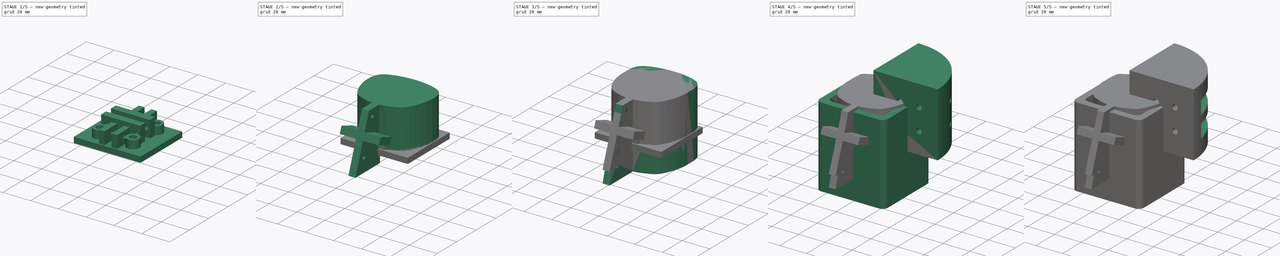
[diagram: build sequence overview — one tinted view per stage of 5, left to right]
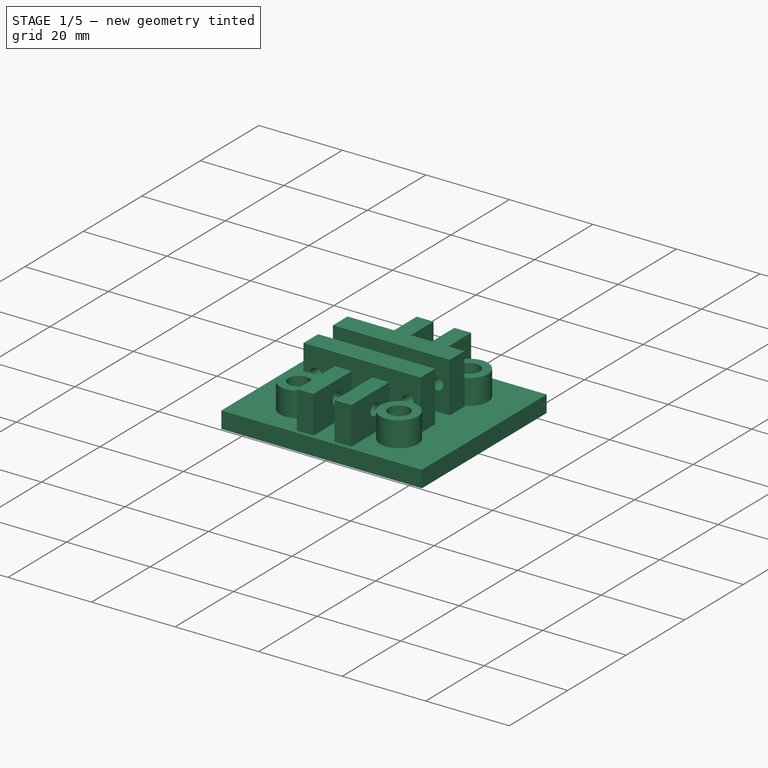
[diagram: stage 1 of 5 — iso view after this stage's code; geometry added in this stage tinted green]
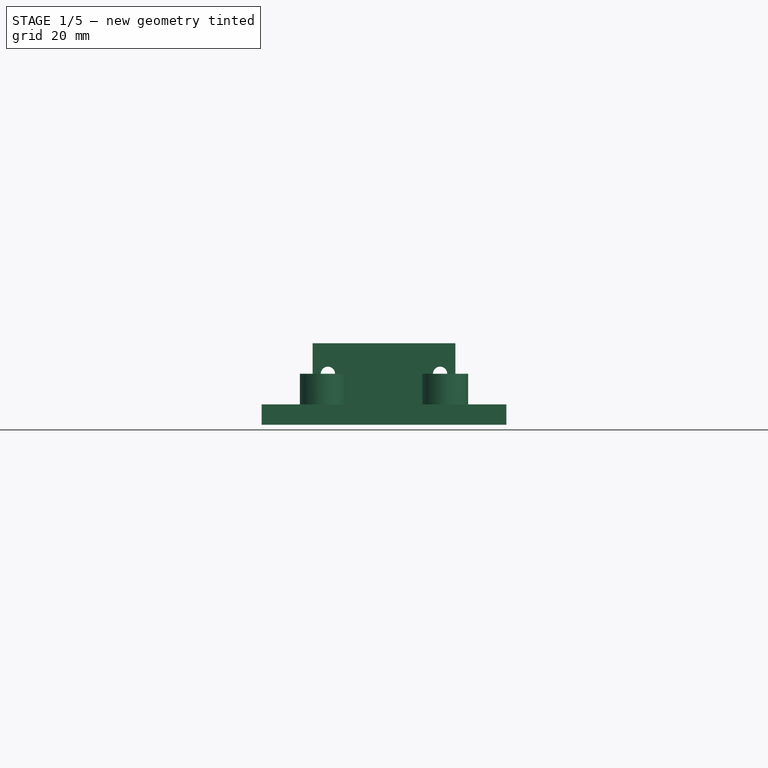
[diagram: stage 1 of 5 — front view after this stage's code; geometry added in this stage tinted green]
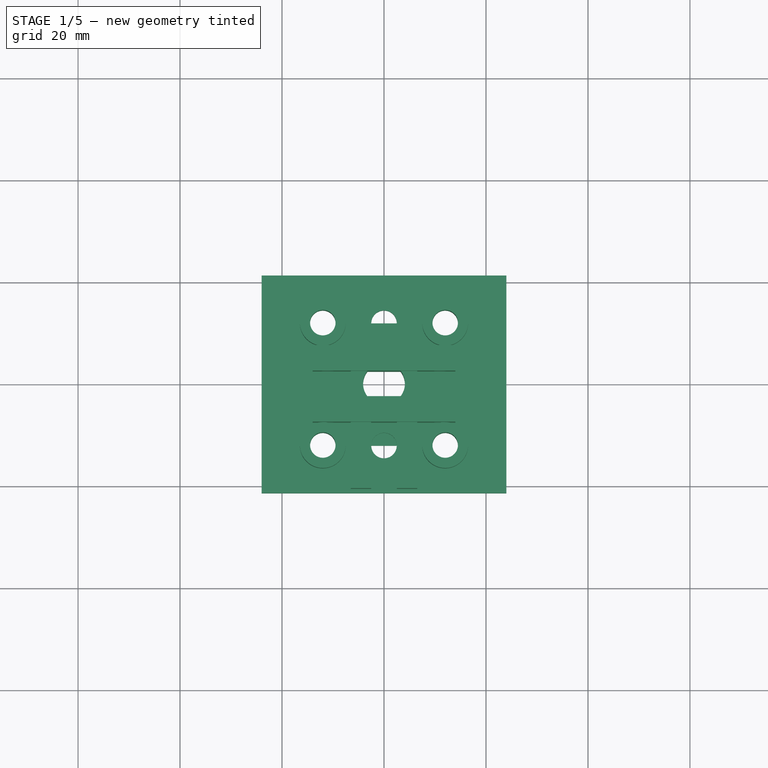
[diagram: stage 1 of 5 — top view after this stage's code; geometry added in this stage tinted green]
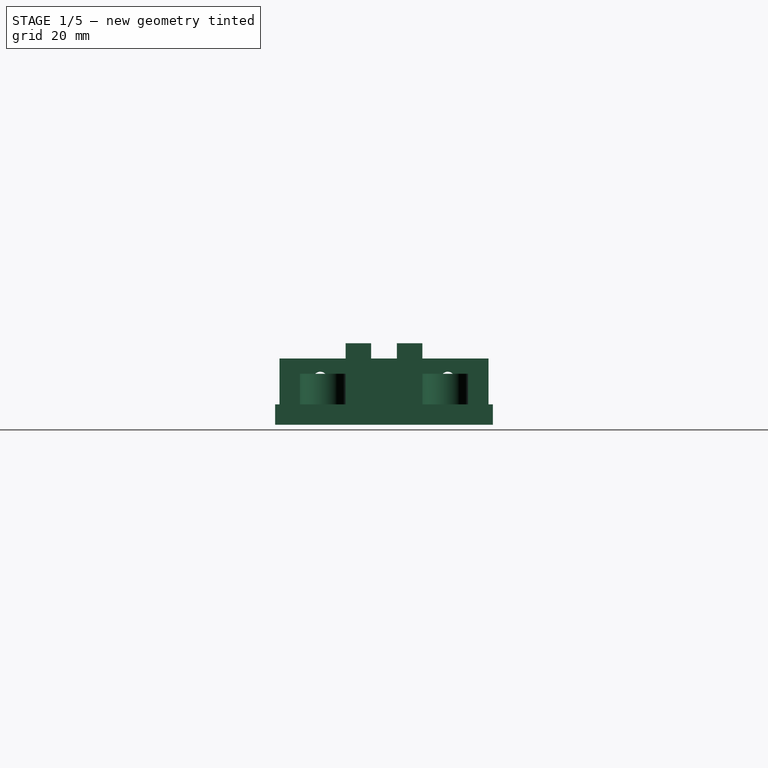
[diagram: stage 1 of 5 — right view after this stage's code; geometry added in this stage tinted green]
FCSTD DOCUMENT  (FreeCAD 0.21R33771 (Git))
Label: TeslaChargerHolder
License: All rights reserved
LicenseURL: http://en.wikipedia.org/wiki/All_rights_reserved
objects: Sketcher::SketchObject×53, PartDesign::Pad×28, PartDesign::Pocket×17, PartDesign::Body×10, Part::Part2DObjectPython×2, Spreadsheet::Sheet×1
note: 155 computed .brp shape members not serialized (recipe doc carries the construction recipe); baked Part::Feature solids carry a one-line shape summary decoded from their .brp

FEATURE [PartDesign::Body] Body004  label="Body004TightPlug"
  Group = -> [Sketch025,Sketch026,Sketch027,Clone2D,Sketch029,Pad014,Sketch030,Sketch031,Sketch032,Pad016,Sketch033,Sketch,Sketch034,Pad,Pocket009,Pad017,Pad018]
  Origin = -> Origin004
  Tip = -> Pad018
FEATURE [Sketcher::SketchObject] Sketch035
  FullyConstrained = false
  MapMode = 5
  Support = -> [XY_Plane]
  expr: Constraints[10] = Spreadsheet.woodHoleR
  sketch-geometry (5):
    g0: LineSegment StartX=-24 StartY=21.3478 StartZ=0 EndX=24 EndY=21.3478 EndZ=0
    g1: LineSegment StartX=24 StartY=21.3478 StartZ=0 EndX=24 EndY=-21.3478 EndZ=0
    g2: LineSegment StartX=24 StartY=-21.3478 StartZ=0 EndX=-24 EndY=-21.3478 EndZ=0
    g3: LineSegment StartX=-24 StartY=-21.3478 StartZ=0 EndX=-24 EndY=21.3478 EndZ=0
    g4: Circle CenterX=0 CenterY=0 CenterZ=0 NormalX=0 NormalY=0 NormalZ=1 AngleXU=0 Radius=4.1
  constraints (11):
    c: Coincident(g0,g1)
    c: Coincident(g1,g2)
    c: Coincident(g2,g3)
    c: Coincident(g3,g0)
    c: Horizontal(g2)
    c: Vertical(g3)
    c: DistanceX(g0,g0) = 48
    c: Symmetric(g0,g0,g-2)
    c: Symmetric(g0,g1,g-1)
    c: Coincident(g4,g-1)
    c: Radius(g4) = 4.1
FEATURE [PartDesign::Pad] Pad019
  Direction = (0,0,1)
  Length = 4
  Length2 = 10
  Profile = -> Sketch035
  ReferenceAxis = -> Sketch035 [N_Axis]
  Type = 0
  expr: Length = Spreadsheet.newConnBaseThickness
FEATURE [Sketcher::SketchObject] Sketch036
  FullyConstrained = true
  MapMode = 5
  Support = -> [XY_Plane]
  expr: Constraints[15] = Spreadsheet.newConnBarWidth + Spreadsheet.newConnSpacing
  expr: Constraints[19] = Spreadsheet.newConnBetweenScrewDist + Spreadsheet.newConnSideToScrewH * 2
  sketch-geometry (8):
    g0: LineSegment StartX=-6.515 StartY=20.5 StartZ=0 EndX=-2.515 EndY=20.5 EndZ=0
    g1: LineSegment StartX=-2.515 StartY=20.5 StartZ=0 EndX=-2.515 EndY=-20.5 EndZ=0
    g2: LineSegment StartX=-2.515 StartY=-20.5 StartZ=0 EndX=-6.515 EndY=-20.5 EndZ=0
    g3: LineSegment StartX=-6.515 StartY=-20.5 StartZ=0 EndX=-6.515 EndY=20.5 EndZ=0
    g4: LineSegment StartX=2.515 StartY=20.5 StartZ=0 EndX=6.515 EndY=20.5 EndZ=0
    g5: LineSegment StartX=6.515 StartY=20.5 StartZ=0 EndX=6.515 EndY=-20.5 EndZ=0
    g6: LineSegment StartX=6.515 StartY=-20.5 StartZ=0 EndX=2.515 EndY=-20.5 EndZ=0
    g7: LineSegment StartX=2.515 StartY=-20.5 StartZ=0 EndX=2.515 EndY=20.5 EndZ=0
  constraints (22):
    c: Coincident(g0,g1)
    c: Coincident(g1,g2)
    c: Coincident(g2,g3)
    c: Coincident(g3,g0)
    c: Horizontal(g0)
    c: Horizontal(g2)
    c: Vertical(g3)
    c: Coincident(g4,g5)
    c: Coincident(g5,g6)
    c: Coincident(g6,g7)
    c: Coincident(g7,g4)
    c: Horizontal(g4)
    c: Horizontal(g6)
    c: Vertical(g5)
    c: Vertical(g7)
    c: DistanceX(g0,g4) = 5.03
    c: Symmetric(g4,g0,g-2)
    c: DistanceX(g0,g0) = 4
    c: Equal(g0,g4)
    c: DistanceY(g1,g1) = 41
    c: Equal(g7,g1)
    c: Symmetric(g0,g1,g-1)
FEATURE [PartDesign::Pad] Pad020
  BaseFeature = -> Pad019
  Direction = (0,0,1)
  Length = 13
  Length2 = 10
  Profile = -> Sketch036
  ReferenceAxis = -> Sketch036 [N_Axis]
  Type = 0
  expr: Length = Spreadsheet.newConnTopY - 2
FEATURE [Sketcher::SketchObject] Sketch037
  FullyConstrained = false
  MapMode = 5
  Placement = pos=(0,0,0) rot=(0.57735,0.57735,0.57735;2.0944rad)
  Support = -> [YZ_Plane]
  expr: Constraints[10] = Spreadsheet.screwTightR
  expr: Constraints[12] = Spreadsheet.newConnBetweenScrewDist
  sketch-geometry (6):
    g0: LineSegment StartX=-12.5 StartY=10 StartZ=0 EndX=12.5 EndY=10 EndZ=0
    g1: LineSegment StartX=-12.5 StartY=9 StartZ=0 EndX=12.5 EndY=9 EndZ=0
    g2: LineSegment StartX=12.5 StartY=10 StartZ=0 EndX=12.5 EndY=9 EndZ=0
    g3: LineSegment StartX=-12.5 StartY=9 StartZ=0 EndX=-12.5 EndY=10 EndZ=0
    g4: Circle CenterX=12.5 CenterY=9 CenterZ=0 NormalX=0 NormalY=0 NormalZ=1 AngleXU=0 Radius=1.4
    g5: Circle CenterX=-12.5 CenterY=9 CenterZ=0 NormalX=0 NormalY=0 NormalZ=1 AngleXU=0 Radius=1.4
  constraints (14):
    c: Horizontal(g1)
    c: Coincident(g2,g0)
    c: Coincident(g2,g1)
    c: Vertical(g2)
    c: Coincident(g3,g1)
    c: Coincident(g3,g0)
    c: Vertical(g3)
    c: Coincident(g4,g1)
    c: Coincident(g5,g1)
    c: Equal(g4,g5)
    c: Radius(g5) = 1.4
    c: Symmetric(g0,g0,g-2)
    c: DistanceX(g0,g0) = 25
    c: DistanceY(g-1,g4) = 9
FEATURE [PartDesign::Pocket] Pocket010
  BaseFeature = -> Pad020
  Direction = (-1,2e-16,-3e-16)
  Length = 5
  Length2 = 5
  Midplane = true
  Profile = -> Sketch037
  ReferenceAxis = -> Sketch037 [N_Axis]
  Type = 1
FEATURE [Sketcher::SketchObject] Sketch038
  FullyConstrained = true
  MapMode = 5
  Support = -> [XY_Plane]
  expr: Constraints[19] = Spreadsheet.woodHoleR
  expr: Constraints[25] = Spreadsheet.woodScrewR
  sketch-geometry (11):
    g0: Circle CenterX=0 CenterY=-12 CenterZ=0 NormalX=0 NormalY=0 NormalZ=1 AngleXU=0 Radius=2.5
    g1: LineSegment StartX=-12 StartY=12 StartZ=0 EndX=12 EndY=12 EndZ=0
    g2: LineSegment StartX=12 StartY=12 StartZ=0 EndX=12 EndY=-12 EndZ=0
    g3: LineSegment StartX=12 StartY=-12 StartZ=0 EndX=-12 EndY=-12 EndZ=0
    g4: LineSegment StartX=-12 StartY=-12 StartZ=0 EndX=-12 EndY=12 EndZ=0
    g5: Circle CenterX=12 CenterY=12 CenterZ=0 NormalX=0 NormalY=0 NormalZ=1 AngleXU=0 Radius=2.5
    g6: Circle CenterX=-12 CenterY=12 CenterZ=0 NormalX=0 NormalY=0 NormalZ=1 AngleXU=0 Radius=2.5
    g7: Circle CenterX=-12 CenterY=-12 CenterZ=0 NormalX=0 NormalY=0 NormalZ=1 AngleXU=0 Radius=2.5
    g8: Circle CenterX=12 CenterY=-12 CenterZ=0 NormalX=0 NormalY=0 NormalZ=1 AngleXU=0 Radius=2.5
    g9: Circle CenterX=0 CenterY=12 CenterZ=0 NormalX=0 NormalY=0 NormalZ=1 AngleXU=0 Radius=2.5
    g10: Circle CenterX=0 CenterY=0 CenterZ=0 NormalX=0 NormalY=0 NormalZ=1 AngleXU=0 Radius=4.1
  constraints (26):
    c: PointOnObject(g0,g-2)
    c: Coincident(g1,g2)
    c: Coincident(g2,g3)
    c: Coincident(g3,g4)
    c: Coincident(g4,g1)
    c: Horizontal(g3)
    c: Vertical(g4)
    c: DistanceX(g1,g1) = 24
    c: DistanceY(g2,g2) = 24
    c: Symmetric(g1,g1,g-2)
    c: Symmetric(g1,g2,g-1)
    c: Coincident(g5,g1)
    c: Coincident(g6,g1)
    c: Coincident(g7,g3)
    c: Coincident(g8,g2)
    c: PointOnObject(g0,g3)
    c: PointOnObject(g9,g1)
    c: PointOnObject(g9,g-2)
    c: Coincident(g10,g-1)
    c: Radius(g10) = 4.1
    c: Equal(g5,g9)
    c: Equal(g9,g6)
    c: Equal(g6,g7)
    c: Equal(g7,g0)
    c: Equal(g0,g8)
    c: Radius(g5) = 2.5
FEATURE [PartDesign::Pocket] Pocket011
  BaseFeature = -> Pocket010
  Direction = (0,0,-1)
  Length = 5
  Length2 = 5
  Profile = -> Sketch038
  ReferenceAxis = -> Sketch038 [N_Axis]
  Reversed = true
  Type = 1
FEATURE [PartDesign::Body] Body008  label="BodyPlugVeryTight"
  Group = -> [Sketch044,Clone2D001,Sketch045,Pad025,Pocket013,Sketch046,Sketch047,Pad027,Sketch048,Pad028,Sketch049,Pocket014]
  Origin = -> Origin008
  Tip = -> Pocket014
FEATURE [Sketcher::SketchObject] Sketch050
  ExternalGeometry = -> [Pocket011]
  FullyConstrained = true
  MapMode = 5
  Support = -> [XY_Plane]
  expr: Constraints[17] = Spreadsheet.newConnBarWidth + Spreadsheet.newConnSpacing
  sketch-geometry (8):
    g0: LineSegment StartX=-14 StartY=7.515 StartZ=0 EndX=14 EndY=7.515 EndZ=0
    g1: LineSegment StartX=14 StartY=7.515 StartZ=0 EndX=14 EndY=2.515 EndZ=0
    g2: LineSegment StartX=14 StartY=2.515 StartZ=0 EndX=-14 EndY=2.515 EndZ=0
    g3: LineSegment StartX=-14 StartY=2.515 StartZ=0 EndX=-14 EndY=7.515 EndZ=0
    g4: LineSegment StartX=-14 StartY=-2.515 StartZ=0 EndX=14 EndY=-2.515 EndZ=0
    g5: LineSegment StartX=14 StartY=-2.515 StartZ=0 EndX=14 EndY=-7.515 EndZ=0
    g6: LineSegment StartX=14 StartY=-7.515 StartZ=0 EndX=-14 EndY=-7.515 EndZ=0
    g7: LineSegment StartX=-14 StartY=-7.515 StartZ=0 EndX=-14 EndY=-2.515 EndZ=0
  constraints (21):
    c: Coincident(g0,g1)
    c: Coincident(g1,g2)
    c: Coincident(g2,g3)
    c: Coincident(g3,g0)
    c: Horizontal(g2)
    c: Vertical(g1)
    c: Vertical(g3)
    c: Coincident(g4,g5)
    c: Coincident(g5,g6)
    c: Coincident(g6,g7)
    c: Coincident(g7,g4)
    c: Horizontal(g4)
    c: Horizontal(g6)
    c: Vertical(g7)
    c: Symmetric(g1,g4,g-1)
    c: Symmetric(g0,g5,g-1)
    c: DistanceY(g1,g1) = 5
    c: DistanceY(g4,g1) = 5.03
    c: Symmetric(g0,g0,g-2)
    c: Equal(g0,g4)
    c: DistanceX(g0,g0) = 28
FEATURE [PartDesign::Pad] Pad029
  BaseFeature = -> Pocket011
  Direction = (0,0,1)
  Length = 16
  Length2 = 10
  Profile = -> Sketch050
  ReferenceAxis = -> Sketch050 [N_Axis]
  Type = 0
  expr: Length = Spreadsheet.blockThickness + 12
FEATURE [Sketcher::SketchObject] Sketch051
  AttachmentOffset = pos=(0,0,4) rot=(0,0,1;0rad)
  ExternalGeometry = -> [Pad029]
  FullyConstrained = true
  MapMode = 5
  Placement = pos=(0,0,4) rot=(0,0,1;0rad)
  Support = -> [XY_Plane]
  expr: .AttachmentOffset.Base.z = Spreadsheet.newConnBaseThickness
  sketch-geometry (12):
    g0: LineSegment StartX=-6.515 StartY=2.515 StartZ=0 EndX=-6.515 EndY=-2.515 EndZ=0
    g1: LineSegment StartX=-6.515 StartY=-2.515 StartZ=0 EndX=-2.515 EndY=-2.515 EndZ=0
    g2: LineSegment StartX=-2.515 StartY=-2.515 StartZ=0 EndX=-2.515 EndY=-7.515 EndZ=0
    g3: LineSegment StartX=-2.515 StartY=-7.515 StartZ=0 EndX=2.515 EndY=-7.515 EndZ=0
    g4: LineSegment StartX=2.515 StartY=-7.515 StartZ=0 EndX=2.515 EndY=-2.515 EndZ=0
    g5: LineSegment StartX=2.515 StartY=-2.515 StartZ=0 EndX=6.515 EndY=-2.515 EndZ=0
    g6: LineSegment StartX=6.515 StartY=-2.515 StartZ=0 EndX=6.515 EndY=2.515 EndZ=0
    g7: LineSegment StartX=6.515 StartY=2.515 StartZ=0 EndX=2.515 EndY=2.515 EndZ=0
    g8: LineSegment StartX=2.515 StartY=2.515 StartZ=0 EndX=2.515 EndY=7.515 EndZ=0
    g9: LineSegment StartX=2.515 StartY=7.515 StartZ=0 EndX=-2.515 EndY=7.515 EndZ=0
    g10: LineSegment StartX=-2.515 StartY=7.515 StartZ=0 EndX=-2.515 EndY=2.515 EndZ=0
    g11: LineSegment StartX=-2.515 StartY=2.515 StartZ=0 EndX=-6.515 EndY=2.515 EndZ=0
  constraints (28):
    c: Coincident(g0,g-4)
    c: Coincident(g0,g-4)
    c: Coincident(g1,g0)
    c: Horizontal(g1)
    c: Coincident(g2,g1)
    c: Coincident(g2,g-6)
    c: Vertical(g2)
    c: Coincident(g3,g2)
    c: Coincident(g3,g-6)
    c: Coincident(g4,g3)
    c: Vertical(g4)
    c: Coincident(g5,g4)
    c: Coincident(g5,g-5)
    c: Horizontal(g5)
    c: Coincident(g6,g5)
    c: Coincident(g6,g-5)
    c: Coincident(g7,g6)
    c: Horizontal(g7)
    c: Coincident(g8,g7)
    c: Coincident(g8,g-3)
    c: Vertical(g8)
    c: Coincident(g9,g8)
    c: Coincident(g9,g-3)
    c: Coincident(g10,g9)
    c: Vertical(g10)
    c: Coincident(g11,g0)
    c: Horizontal(g11)
    c: Coincident(g10,g11)
FEATURE [Sketcher::SketchObject] Sketch052
  FullyConstrained = false
  MapMode = 5
  Placement = pos=(0,0,0) rot=(1,0,0;1.5708rad)
  Support = -> [XZ_Plane]
  expr: Constraints[3] = Spreadsheet.screwTightR
  sketch-geometry (3):
    g0: LineSegment StartX=-11 StartY=10 StartZ=0 EndX=11 EndY=10 EndZ=0
    g1: Circle CenterX=-11 CenterY=10 CenterZ=0 NormalX=0 NormalY=0 NormalZ=1 AngleXU=0 Radius=1.4
    g2: Circle CenterX=11 CenterY=10 CenterZ=0 NormalX=0 NormalY=0 NormalZ=1 AngleXU=0 Radius=1.4
  constraints (5):
    c: Coincident(g1,g0)
    c: Coincident(g2,g0)
    c: Equal(g1,g2)
    c: Radius(g1) = 1.4
    c: Horizontal(g0)
FEATURE [PartDesign::Pocket] Pocket016
  BaseFeature = -> Pad029
  Direction = (0,1,2e-16)
  Length = 5
  Length2 = 5
  Midplane = true
  Profile = -> Sketch052
  ReferenceAxis = -> Sketch052 [N_Axis]
  Type = 1
FEATURE [PartDesign::Body] Body  label="BodyBase"
  Group = -> [Sketch035,Pad019,Sketch036,Pad020,Sketch037,Pocket010,Sketch038,Pocket011,Sketch050,Pad029,Sketch051,Sketch052,Pocket016,Pocket017,Sketch053,Pocket018]
  Origin = -> Origin
  Placement = pos=(0,-39.3,18.8) rot=(1,0,0;4.36332rad)
  Tip = -> Pocket018
FEATURE [Sketcher::SketchObject] Sketch054
  FullyConstrained = true
  MapMode = 5
  Support = -> [XY_Plane009]
  sketch-geometry (8):
    g0: LineSegment StartX=-12 StartY=12 StartZ=0 EndX=12 EndY=12 EndZ=0
    g1: LineSegment StartX=12 StartY=12 StartZ=0 EndX=12 EndY=-12 EndZ=0
    g2: LineSegment StartX=12 StartY=-12 StartZ=0 EndX=-12 EndY=-12 EndZ=0
    g3: LineSegment StartX=-12 StartY=-12 StartZ=0 EndX=-12 EndY=12 EndZ=0
    g4: LineSegment StartX=-12 StartY=12 StartZ=0 EndX=12 EndY=12 EndZ=0
    g5: LineSegment StartX=12 StartY=12 StartZ=0 EndX=12 EndY=-12 EndZ=0
    g6: LineSegment StartX=12 StartY=-12 StartZ=0 EndX=-12 EndY=-12 EndZ=0
    g7: LineSegment StartX=-12 StartY=-12 StartZ=0 EndX=-12 EndY=12 EndZ=0
  constraints (20):
    c: Coincident(g0,g1)
    c: Coincident(g1,g2)
    c: Coincident(g2,g3)
    c: Coincident(g3,g0)
    c: Horizontal(g2)
    c: Vertical(g3)
    c: DistanceX(g0,g0) = 24
    c: DistanceY(g1,g1) = 24
    c: Symmetric(g0,g0,g-2)
    c: Symmetric(g0,g1,g-1)
    c: Coincident(g4,g5)
    c: Coincident(g5,g6)
    c: Coincident(g6,g7)
    c: Coincident(g7,g4)
    c: Horizontal(g4)
    c: Horizontal(g6)
    c: Vertical(g5)
    c: Vertical(g7)
    c: Coincident(g4,g0)
    c: Coincident(g5,g1)
FEATURE [Sketcher::SketchObject] Sketch055
  FullyConstrained = true
  MapMode = 5
  Support = -> [XY_Plane009]
  expr: Constraints[15] = Spreadsheet.woodScrewR
  expr: Constraints[19] = Spreadsheet.woodHoleR
  sketch-geometry (9):
    g0: LineSegment StartX=-12 StartY=12 StartZ=0 EndX=12 EndY=12 EndZ=0
    g1: LineSegment StartX=12 StartY=12 StartZ=0 EndX=12 EndY=-12 EndZ=0
    g2: LineSegment StartX=12 StartY=-12 StartZ=0 EndX=-12 EndY=-12 EndZ=0
    g3: LineSegment StartX=-12 StartY=-12 StartZ=0 EndX=-12 EndY=12 EndZ=0
    g4: Circle CenterX=12 CenterY=12 CenterZ=0 NormalX=0 NormalY=0 NormalZ=1 AngleXU=0 Radius=2.5
    g5: Circle CenterX=-12 CenterY=12 CenterZ=0 NormalX=0 NormalY=0 NormalZ=1 AngleXU=0 Radius=2.5
    g6: Circle CenterX=-12 CenterY=-12 CenterZ=0 NormalX=0 NormalY=0 NormalZ=1 AngleXU=0 Radius=2.5
    g7: Circle CenterX=12 CenterY=-12 CenterZ=0 NormalX=0 NormalY=0 NormalZ=1 AngleXU=0 Radius=2.5
    g8: Circle CenterX=0 CenterY=0 CenterZ=0 NormalX=0 NormalY=0 NormalZ=1 AngleXU=0 Radius=4.1
  constraints (20):
    c: Coincident(g0,g1)
    c: Coincident(g1,g2)
    c: Coincident(g2,g3)
    c: Coincident(g3,g0)
    c: Horizontal(g2)
    c: Vertical(g3)
    c: DistanceX(g0,g0) = 24
    c: DistanceY(g1,g1) = 24
    c: Symmetric(g0,g0,g-2)
    c: Symmetric(g0,g1,g-1)
    c: Coincident(g4,g0)
    c: Coincident(g5,g0)
    c: Coincident(g6,g2)
    c: Coincident(g7,g1)
    c: Equal(g5,g6)
    c: Radius(g4) = 2.5
    c: Equal(g4,g5)
    c: Equal(g7,g6)
    c: Coincident(g8,g-1)
    c: Radius(g8) = 4.1
FEATURE [PartDesign::Pad] Pad030
  Direction = (0,0,1)
  Length = 2
  Length2 = 10
  Profile = -> Sketch054
  ReferenceAxis = -> Sketch054 [N_Axis]
  Type = 0
  expr: Length = 2
FEATURE [Sketcher::SketchObject] Sketch056
  FullyConstrained = true
  MapMode = 5
  Support = -> [XY_Plane009]
  expr: Constraints[15] = Spreadsheet.supportRodOuterR
  sketch-geometry (8):
    g0: LineSegment StartX=-12 StartY=12 StartZ=0 EndX=12 EndY=12 EndZ=0
    g1: LineSegment StartX=12 StartY=12 StartZ=0 EndX=12 EndY=-12 EndZ=0
    g2: LineSegment StartX=12 StartY=-12 StartZ=0 EndX=-12 EndY=-12 EndZ=0
    g3: LineSegment StartX=-12 StartY=-12 StartZ=0 EndX=-12 EndY=12 EndZ=0
    g4: Circle CenterX=12 CenterY=12 CenterZ=0 NormalX=0 NormalY=0 NormalZ=1 AngleXU=0 Radius=4.5
    g5: Circle CenterX=-12 CenterY=12 CenterZ=0 NormalX=0 NormalY=0 NormalZ=1 AngleXU=0 Radius=4.5
    g6: Circle CenterX=-12 CenterY=-12 CenterZ=0 NormalX=0 NormalY=0 NormalZ=1 AngleXU=0 Radius=4.5
    g7: Circle CenterX=12 CenterY=-12 CenterZ=0 NormalX=0 NormalY=0 NormalZ=1 AngleXU=0 Radius=4.5
  constraints (18):
    c: Coincident(g0,g1)
    c: Coincident(g1,g2)
    c: Coincident(g2,g3)
    c: Coincident(g3,g0)
    c: Horizontal(g2)
    c: Vertical(g3)
    c: DistanceX(g0,g0) = 24
    c: DistanceY(g1,g1) = 24
    c: Symmetric(g0,g0,g-2)
    c: Symmetric(g0,g1,g-1)
    c: Coincident(g4,g0)
    c: Coincident(g5,g0)
    c: Coincident(g6,g2)
    c: Coincident(g7,g1)
    c: Equal(g5,g6)
    c: Radius(g4) = 4.5
    c: Equal(g4,g5)
    c: Equal(g7,g6)
FEATURE [PartDesign::Pad] Pad031
  BaseFeature = -> Pad030
  Direction = (0,0,1)
  Length = 10
  Length2 = 10
  Profile = -> Sketch056
  ReferenceAxis = -> Sketch056 [N_Axis]
  Type = 0
  expr: Length = Spreadsheet.supportRodLen
FEATURE [PartDesign::Pocket] Pocket019
  BaseFeature = -> Pad031
  Direction = (0,0,-1)
  Length = 5
  Length2 = 5
  Profile = -> Sketch055
  ReferenceAxis = -> Sketch055 [N_Axis]
  Reversed = true
  Type = 1
FEATURE [PartDesign::Body] Body009  label="BodyLegPlate"
  Group = -> [Sketch054,Sketch055,Pad030,Sketch056,Pad031,Pocket019]
  Origin = -> Origin009
  Tip = -> Pocket019
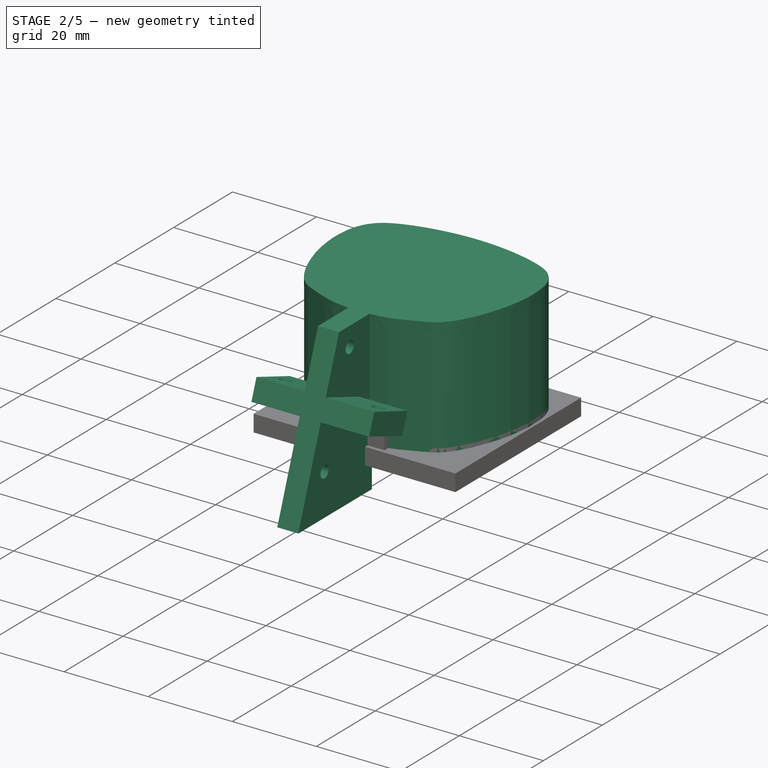
[diagram: stage 2 of 5 — iso view after this stage's code; geometry added in this stage tinted green]
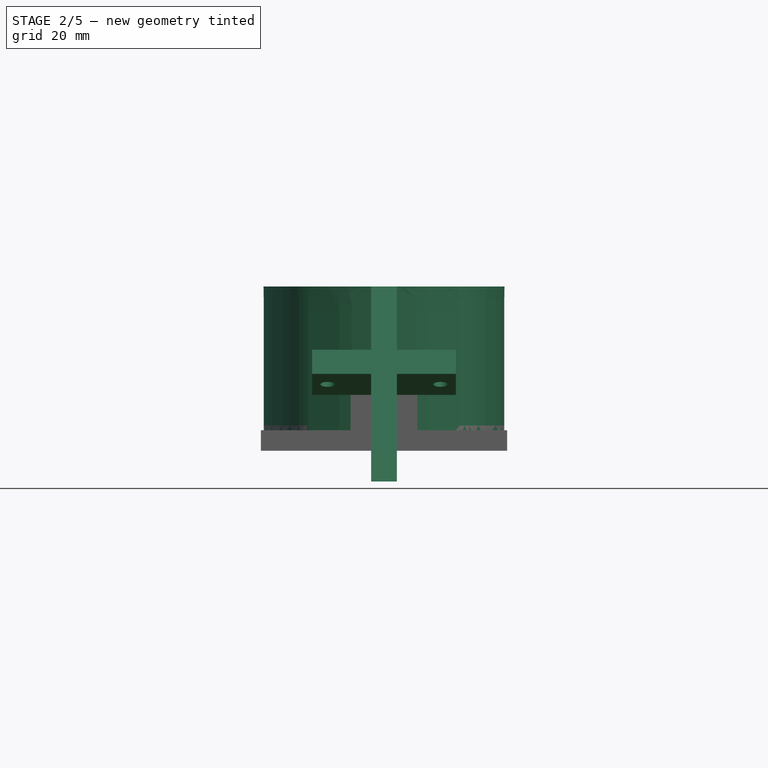
[diagram: stage 2 of 5 — front view after this stage's code; geometry added in this stage tinted green]
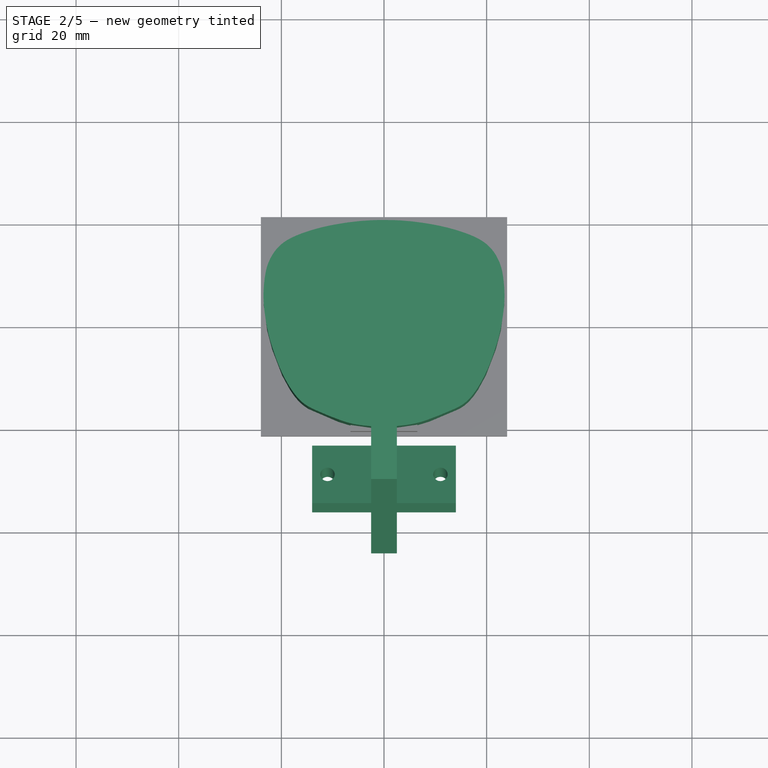
[diagram: stage 2 of 5 — top view after this stage's code; geometry added in this stage tinted green]
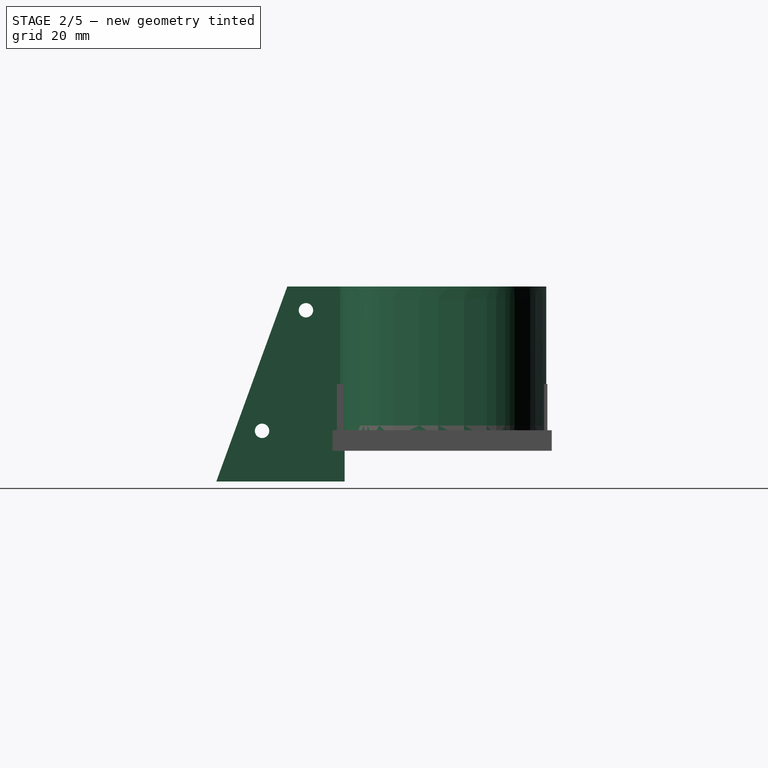
[diagram: stage 2 of 5 — right view after this stage's code; geometry added in this stage tinted green]
FEATURE [PartDesign::Body] Body006  label="BodyCenterRod"
  Group = -> [Sketch040,Pad022]
  Origin = -> Origin006
  Tip = -> Pad022
FEATURE [Sketcher::SketchObject] Sketch041  label="Sketch041Base"
  FullyConstrained = true
  MapMode = 5
  Support = -> [XY_Plane007]
  expr: Constraints[6] = Spreadsheet.bottomConnWidth
  expr: Constraints[7] = Spreadsheet.bottomConnWidth
  sketch-geometry (8):
    g0: LineSegment StartX=-12 StartY=12 StartZ=0 EndX=12 EndY=12 EndZ=0
    g1: LineSegment StartX=12 StartY=12 StartZ=0 EndX=12 EndY=-12 EndZ=0
    g2: LineSegment StartX=12 StartY=-12 StartZ=0 EndX=-12 EndY=-12 EndZ=0
    g3: LineSegment StartX=-12 StartY=-12 StartZ=0 EndX=-12 EndY=12 EndZ=0
    g4: LineSegment StartX=-12 StartY=12 StartZ=0 EndX=12 EndY=12 EndZ=0
    g5: LineSegment StartX=12 StartY=12 StartZ=0 EndX=12 EndY=-12 EndZ=0
    g6: LineSegment StartX=12 StartY=-12 StartZ=0 EndX=-12 EndY=-12 EndZ=0
    g7: LineSegment StartX=-12 StartY=-12 StartZ=0 EndX=-12 EndY=12 EndZ=0
  constraints (20):
    c: Coincident(g0,g1)
    c: Coincident(g1,g2)
    c: Coincident(g2,g3)
    c: Coincident(g3,g0)
    c: Horizontal(g2)
    c: Vertical(g3)
    c: DistanceX(g0,g0) = 24
    c: DistanceY(g1,g1) = 24
    c: Symmetric(g0,g0,g-2)
    c: Symmetric(g1,g0,g-1)
    c: Coincident(g4,g5)
    c: Coincident(g5,g6)
    c: Coincident(g6,g7)
    c: Coincident(g7,g4)
    c: Horizontal(g4)
    c: Horizontal(g6)
    c: Vertical(g5)
    c: Vertical(g7)
    c: Coincident(g4,g0)
    c: Coincident(g5,g1)
FEATURE [Sketcher::SketchObject] Sketch042  label="Sketch041Base001"
  FullyConstrained = true
  MapMode = 5
  Support = -> [XY_Plane007]
  expr: Constraints[14] = Spreadsheet.supportRodOuterR
  expr: Constraints[15] = Spreadsheet.supportRodOuterR
  expr: Constraints[16] = Spreadsheet.supportRodOuterR
  expr: Constraints[6] = Spreadsheet.bottomConnWidth
  expr: Constraints[7] = Spreadsheet.bottomConnWidth
  sketch-geometry (8):
    g0: LineSegment StartX=-12 StartY=12 StartZ=0 EndX=12 EndY=12 EndZ=0
    g1: LineSegment StartX=12 StartY=12 StartZ=0 EndX=12 EndY=-12 EndZ=0
    g2: LineSegment StartX=12 StartY=-12 StartZ=0 EndX=-12 EndY=-12 EndZ=0
    g3: LineSegment StartX=-12 StartY=-12 StartZ=0 EndX=-12 EndY=12 EndZ=0
    g4: Circle CenterX=-12 CenterY=12 CenterZ=0 NormalX=0 NormalY=0 NormalZ=1 AngleXU=0 Radius=4.5
    g5: Circle CenterX=12 CenterY=12 CenterZ=0 NormalX=0 NormalY=0 NormalZ=1 AngleXU=0 Radius=4.5
    g6: Circle CenterX=-12 CenterY=-12 CenterZ=0 NormalX=0 NormalY=0 NormalZ=1 AngleXU=0 Radius=4.5
    g7: Circle CenterX=12 CenterY=-12 CenterZ=0 NormalX=0 NormalY=0 NormalZ=1 AngleXU=0 Radius=4.5
  constraints (18):
    c: Coincident(g0,g1)
    c: Coincident(g1,g2)
    c: Coincident(g2,g3)
    c: Coincident(g3,g0)
    c: Horizontal(g2)
    c: Vertical(g3)
    c: DistanceX(g0,g0) = 24
    c: DistanceY(g1,g1) = 24
    c: Symmetric(g0,g0,g-2)
    c: Symmetric(g1,g0,g-1)
    c: Coincident(g4,g0)
    c: Coincident(g5,g0)
    c: Coincident(g6,g2)
    c: Coincident(g7,g1)
    c: Radius(g4) = 4.5
    c: Radius(g6) = 4.5
    c: Radius(g5) = 4.5
    c: Equal(g7,g5)
FEATURE [PartDesign::Pad] Pad023
  Direction = (0,0,1)
  Length = 4
  Length2 = 10
  Profile = -> Sketch041
  ReferenceAxis = -> Sketch041 [N_Axis]
  Type = 0
  expr: Length = Spreadsheet.newConnBaseThickness
FEATURE [PartDesign::Pad] Pad024
  BaseFeature = -> Pad023
  Direction = (0,0,1)
  Length = 14
  Length2 = 10
  Profile = -> Sketch042
  ReferenceAxis = -> Sketch042 [N_Axis]
  Type = 0
  expr: Length = Spreadsheet.newConnBaseThickness + Spreadsheet.supportRodLen
FEATURE [PartDesign::Body] Body007  label="BodyBottomSupportConn"
  Group = -> [Sketch041,Sketch042,Pad023,Pad024,Sketch043,Pocket012]
  Origin = -> Origin007
  Tip = -> Pocket012
FEATURE [Sketcher::SketchObject] Sketch044  label="Sketch025Base001"
  FullyConstrained = false
  sketch-geometry (62):
    g0-g15: Circle x16 (B-spline internal-alignment scaffolding for g16; pole/knot coordinates omitted)
    g16: BSplineCurve PolesCount=16 KnotsCount=14 Degree=3 IsPeriodic=0
    g17-g30: GeomPoint x14 (B-spline internal-alignment scaffolding for g16; pole/knot coordinates omitted)
    g31-g46: Circle x16 (B-spline internal-alignment scaffolding for g47; pole/knot coordinates omitted)
    g47: BSplineCurve PolesCount=16 KnotsCount=14 Degree=3 IsPeriodic=0
    g48-g61: GeomPoint x14 (B-spline internal-alignment scaffolding for g47; pole/knot coordinates omitted)
  constraints (14):
    c: Weight(g0) = 1
    c: Equal(g0, g1-g15) x15
    c: InternalAlignment(g0-g15 -> g16) x16
    c: InternalAlignment(g17-g30 -> g16) x14
    c: DistanceY(g16,g16) = 35
    c: Weight(g31) = 1
    c: Equal(g31, g32-g46) x15
    c: InternalAlignment(g31-g46 -> g47) x16
    c: InternalAlignment(g48-g61 -> g47) x14
    c: Coincident(g16,g47)
    c: PointOnObject(g16,g-2)
    c: Coincident(g47,g16)
    c: PointOnObject(g16,g-2)
    c: DistanceX(g10,g41) = 39.5
FEATURE [Part::Part2DObjectPython] Clone2D001  label="Sketch025Base001 (2D)"  # Draft 2D object (typed FeaturePython)
  Fuse = false
  Objects = -> [Sketch044]
  Scale = (1.15,1.15,1.15)
FEATURE [Sketcher::SketchObject] Sketch045  label="Sketch045Outer"
  FullyConstrained = false
  Placement = pos=(0,0,0) rot=(0,0,1;3.14159rad)
  sketch-geometry (2):
    g0: BSplineCurve PolesCount=16 KnotsCount=14 Degree=3 IsPeriodic=0
    g1: BSplineCurve PolesCount=16 KnotsCount=14 Degree=3 IsPeriodic=0
  constraints (3):
    c: Coincident(g0,g1)
    c: Coincident(g0,g1)
    c: PointOnObject(g0,g-2)
FEATURE [PartDesign::Pad] Pad025
  Direction = (0,0,1)
  Length = 32
  Length2 = 10
  Placement = pos=(0,0,0) rot=(0,0,1;3.14159rad)
  Profile = -> Sketch045
  ReferenceAxis = -> Sketch045 [N_Axis]
  Type = 0
  expr: Length = Spreadsheet.superTightLen
FEATURE [PartDesign::Pocket] Pocket013
  BaseFeature = -> Pad025
  Direction = (0,0,-1)
  Length = 30
  Length2 = 5
  Placement = pos=(0,0,0) rot=(0,0,1;3.14159rad)
  Profile = -> Sketch044
  ReferenceAxis = -> Sketch044 [N_Axis]
  Reversed = true
  Type = 0
  expr: Length = Spreadsheet.superTightLen - Spreadsheet.newTopCoverThickness
FEATURE [Sketcher::SketchObject] Sketch046  label="Sketch031Trigger001"
  FullyConstrained = true
  MapMode = 5
  Placement = pos=(0,0,0) rot=(0.57735,0.57735,0.57735;2.0944rad)
  Support = -> [YZ_Plane008]
  expr: Constraints[3] = Spreadsheet.superTightToTag
  sketch-geometry (2):
    g0: LineSegment StartX=-18 StartY=11 StartZ=0 EndX=-18 EndY=5 EndZ=0
    g1: ArcOfCircle CenterX=-18 CenterY=8 CenterZ=0 NormalX=0 NormalY=0 NormalZ=1 AngleXU=0 Radius=3 StartAngle=4.71239 EndAngle=7.85398
  constraints (7):
    c: Vertical(g0)
    c: DistanceY(g0,g0) = 6
    c: DistanceX(g0,g-1) = 18
    c: DistanceY(g-1,g0) = 5
    c: PointOnObject(g1,g0)
    c: Coincident(g1,g0)
    c: Coincident(g1,g0)
FEATURE [Sketcher::SketchObject] Sketch047  label="Sketch033SideConn001"
  FullyConstrained = true
  MapMode = 5
  Placement = pos=(0,0,0) rot=(0.57735,0.57735,0.57735;2.0944rad)
  Support = -> [YZ_Plane008]
  expr: Constraints[15] = Spreadsheet.newConnSideToScrewH
  expr: Constraints[19] = Spreadsheet.newConnSideToScrew
  expr: Constraints[24] = Spreadsheet.newConnBetweenScrewDist
  expr: Constraints[30] = Spreadsheet.superTightLen
  sketch-geometry (12):
    g0: LineSegment StartX=-44 StartY=-6 StartZ=0 EndX=-30.1691 EndY=32 EndZ=0
    g1: LineSegment StartX=-30.1691 StartY=32 StartZ=0 EndX=-19 EndY=32 EndZ=0
    g2: LineSegment StartX=-19 StartY=32 StartZ=0 EndX=-19 EndY=-6 EndZ=0
    g3: LineSegment StartX=-30.1691 StartY=32 StartZ=0 EndX=-19 EndY=27.9348 EndZ=0
    g4: LineSegment StartX=-19 StartY=27.9348 StartZ=0 EndX=-31.3512 EndY=-6 EndZ=0
    g5: LineSegment StartX=-31.3512 StartY=-6 StartZ=0 EndX=-42.5204 EndY=-1.93477 EndZ=0
    g6: LineSegment StartX=-31.2337 StartY=29.0751 StartZ=0 EndX=-26.5352 EndY=27.365 EndZ=0
    g7: LineSegment StartX=-39.7842 StartY=5.58277 StartZ=0 EndX=-35.0858 EndY=3.87267 EndZ=0
    g8: Circle CenterX=-26.5352 CenterY=27.365 CenterZ=0 NormalX=0 NormalY=0 NormalZ=1 AngleXU=0 Radius=1.4
    g9: Circle CenterX=-35.0858 CenterY=3.87267 CenterZ=0 NormalX=0 NormalY=0 NormalZ=1 AngleXU=0 Radius=1.4
    g10: LineSegment StartX=-19 StartY=-6 StartZ=0 EndX=-44 EndY=-6 EndZ=0
    g11: LineSegment StartX=0 StartY=0 StartZ=0 EndX=-41.8162 EndY=0 EndZ=0
  constraints (36):
    c: Coincident(g1,g0)
    c: Coincident(g2,g1)
    c: Vertical(g2)
    c: Coincident(g3,g0)
    c: PointOnObject(g3,g2)
    c: Angle(g0,g3) = 1.5708
    c: DistanceX(g2,g-1) = 19
    c: Coincident(g4,g3)
    c: Parallel(g4,g0)
    c: Coincident(g5,g4)
    c: PointOnObject(g5,g0)
    c: Angle(g4,g5) = 1.5708
    c: Horizontal(g1)
    c: PointOnObject(g6,g0)
    c: PointOnObject(g7,g0)
    c: Distance(g7,g5) = 8
    c: Angle(g0,g6) = 1.5708
    c: Angle(g7,g0) = 1.5708
    c: Equal(g6,g7)
    c: Distance(g6) = 5
    c: Coincident(g8,g6)
    c: Coincident(g9,g7)
    c: Equal(g8,g9)
    c: Radius(g8) = 1.4
    c: Distance(g8,g9) = 25
    c: Horizontal(g10)
    c: Coincident(g0,g10)
    c: DistanceX(g10,g10) = 25
    c: PointOnObject(g4,g10)
    c: Coincident(g2,g10)
    c: DistanceY(g-1,g1) = 32
    c: DistanceY(g2,g2) = 38
    c: Angle(g10,g0) = 1.22173
    c: Coincident(g11,g-1)
    c: PointOnObject(g11,g0)
    c: Horizontal(g11)
FEATURE [PartDesign::Pad] Pad027
  BaseFeature = -> Pocket013
  Direction = (1,-2e-16,3e-16)
  Length = 5
  Length2 = 10
  Midplane = true
  Placement = pos=(0,0,0) rot=(0,0,1;3.14159rad)
  Profile = -> Sketch047
  ReferenceAxis = -> Sketch047 [N_Axis]
  Type = 0
  expr: Length = Spreadsheet.newConnBarWidth
FEATURE [Sketcher::SketchObject] Sketch048
  AttachmentOffset = pos=(0,-41.82,0) rot=(1,0,0;1.22173rad)
  ExternalGeometry = -> [Pad027]
  FullyConstrained = false
  MapMode = 5
  Placement = pos=(0,-41.82,0) rot=(1,0,0;1.22173rad)
  Support = -> [XY_Plane008]
  expr: Constraints[8] = Spreadsheet.newConnBarWidth
  expr: Constraints[9] = 28 mm
  sketch-geometry (5):
    g0: LineSegment StartX=-14 StartY=20.9424 StartZ=0 EndX=14 EndY=20.9424 EndZ=0
    g1: LineSegment StartX=14 StartY=20.9424 StartZ=0 EndX=14 EndY=15.9424 EndZ=0
    g2: LineSegment StartX=14 StartY=15.9424 StartZ=0 EndX=-14 EndY=15.9424 EndZ=0
    g3: LineSegment StartX=-14 StartY=15.9424 StartZ=0 EndX=-14 EndY=20.9424 EndZ=0
    g4: LineSegment StartX=-24.3887 StartY=18.4424 StartZ=0 EndX=19.1232 EndY=18.4424 EndZ=0
  constraints (11):
    c: Coincident(g0,g1)
    c: Coincident(g1,g2)
    c: Coincident(g2,g3)
    c: Coincident(g3,g0)
    c: Horizontal(g2)
    c: Vertical(g3)
    c: Symmetric(g-3,g-4,g4)
    c: Symmetric(g0,g1,g4)
    c: DistanceY(g1,g1) = 5
    c: DistanceX(g0,g0) = 28
    c: Symmetric(g0,g0,g-2)
FEATURE [PartDesign::Pad] Pad028
  BaseFeature = -> Pad027
  Direction = (0,-0.939693,0.34202)
  Length = 12
  Length2 = 10
  Placement = pos=(0,0,0) rot=(0,0,1;3.14159rad)
  Profile = -> Sketch048
  ReferenceAxis = -> Sketch048 [N_Axis]
  Reversed = true
  Type = 0
FEATURE [Sketcher::SketchObject] Sketch049
  ExternalGeometry = -> [Pad028]
  FullyConstrained = true
  MapMode = 5
  Placement = pos=(-1e-16,0.560601,1.54024) rot=(0,0.984808,-0.173648;3.14159rad)
  Support = -> [Pad028]
  expr: Constraints[6] = Spreadsheet.screwTightR
  sketch-geometry (3):
    g0: LineSegment StartX=-14 StartY=-33.2979 StartZ=0 EndX=14 EndY=-33.2979 EndZ=0
    g1: Circle CenterX=-11 CenterY=-33.2979 CenterZ=0 NormalX=0 NormalY=0 NormalZ=1 AngleXU=0 Radius=1.4
    g2: Circle CenterX=11 CenterY=-33.2979 CenterZ=0 NormalX=0 NormalY=0 NormalZ=1 AngleXU=0 Radius=1.4
  constraints (9):
    c: PointOnObject(g0,g-4)
    c: PointOnObject(g0,g-3)
    c: Symmetric(g-3,g-3,g0)
    c: PointOnObject(g1,g0)
    c: PointOnObject(g2,g0)
    c: Equal(g2,g1)
    c: Radius(g1) = 1.4
    c: DistanceX(g0,g1) = 3
    c: DistanceX(g2,g0) = 3
FEATURE [PartDesign::Pocket] Pocket014
  BaseFeature = -> Pad028
  Direction = (0,0.34202,0.939693)
  Length = 5
  Length2 = 5
  Placement = pos=(0,0,0) rot=(0,0,1;3.14159rad)
  Profile = -> Sketch049
  ReferenceAxis = -> Sketch049 [N_Axis]
  Type = 1
FEATURE [PartDesign::Pocket] Pocket017
  BaseFeature = -> Pocket016
  Direction = (0,0,-1)
  Length = 5
  Length2 = 5
  Profile = -> Sketch051
  ReferenceAxis = -> Sketch051 [N_Axis]
  Reversed = true
  Type = 1
FEATURE [Sketcher::SketchObject] Sketch053
  ExternalGeometry = -> [Pocket017]
  FullyConstrained = true
  MapMode = 5
  Support = -> [XY_Plane]
  sketch-geometry (1):
    g0: Circle CenterX=0 CenterY=0 CenterZ=0 NormalX=0 NormalY=0 NormalZ=1 AngleXU=0 Radius=4.1
  constraints (2):
    c: Coincident(g0,g-3)
    c: PointOnObject(g-3,g0)
FEATURE [PartDesign::Pocket] Pocket018
  BaseFeature = -> Pocket017
  Direction = (0,0,-1)
  Length = 5
  Length2 = 5
  Profile = -> Sketch053
  ReferenceAxis = -> Sketch053 [N_Axis]
  Reversed = true
  Type = 1
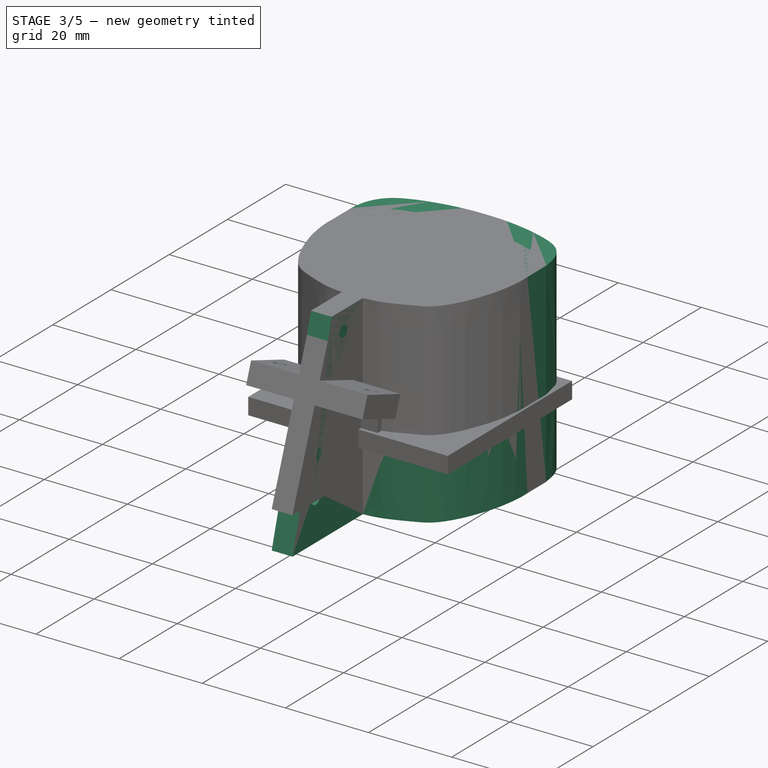
[diagram: stage 3 of 5 — iso view after this stage's code; geometry added in this stage tinted green]
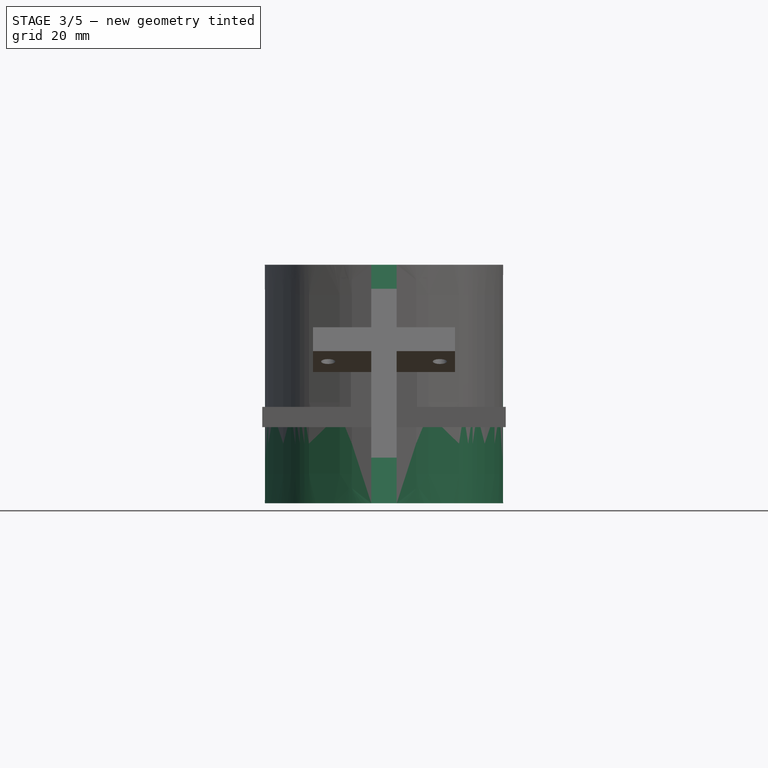
[diagram: stage 3 of 5 — front view after this stage's code; geometry added in this stage tinted green]
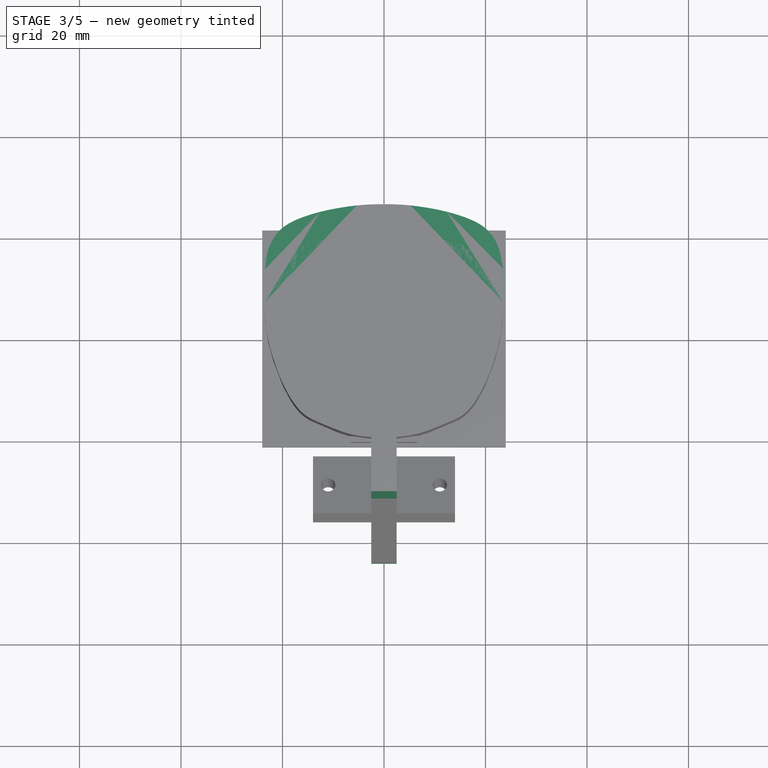
[diagram: stage 3 of 5 — top view after this stage's code; geometry added in this stage tinted green]
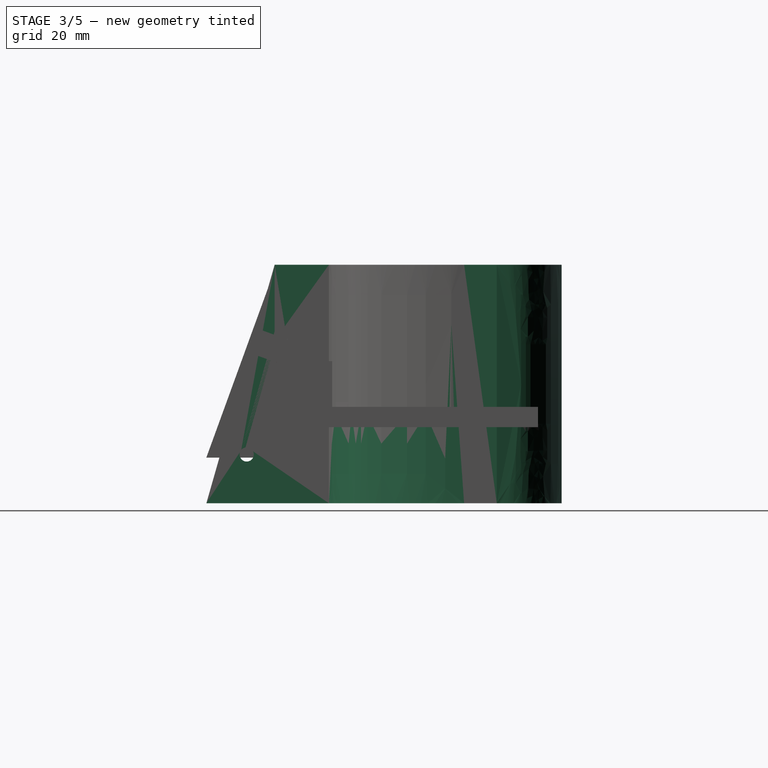
[diagram: stage 3 of 5 — right view after this stage's code; geometry added in this stage tinted green]
FEATURE [PartDesign::Body] Body002  label="Body002TeslaChargerHunger"
  Group = -> [Sketch011,Pad006,Sketch012,Pad007,Sketch013,Pad008,Sketch014,Sketch021,Pad011,Sketch022,Pad012,Sketch023,Pad013]
  Origin = -> Origin002
  Tip = -> Pad013
FEATURE [Sketcher::SketchObject] Sketch025  label="Sketch025Base"
  FullyConstrained = false
  sketch-geometry (62):
    g0-g15: Circle x16 (B-spline internal-alignment scaffolding for g16; pole/knot coordinates omitted)
    g16: BSplineCurve PolesCount=16 KnotsCount=14 Degree=3 IsPeriodic=0
    g17-g30: GeomPoint x14 (B-spline internal-alignment scaffolding for g16; pole/knot coordinates omitted)
    g31-g46: Circle x16 (B-spline internal-alignment scaffolding for g47; pole/knot coordinates omitted)
    g47: BSplineCurve PolesCount=16 KnotsCount=14 Degree=3 IsPeriodic=0
    g48-g61: GeomPoint x14 (B-spline internal-alignment scaffolding for g47; pole/knot coordinates omitted)
  constraints (14):
    c: Weight(g0) = 1
    c: Equal(g0, g1-g15) x15
    c: InternalAlignment(g0-g15 -> g16) x16
    c: InternalAlignment(g17-g30 -> g16) x14
    c: DistanceY(g16,g16) = 35
    c: Weight(g31) = 1
    c: Equal(g31, g32-g46) x15
    c: InternalAlignment(g31-g46 -> g47) x16
    c: InternalAlignment(g48-g61 -> g47) x14
    c: Coincident(g16,g47)
    c: PointOnObject(g16,g-2)
    c: Coincident(g47,g16)
    c: PointOnObject(g16,g-2)
    c: DistanceX(g10,g41) = 39.5
FEATURE [Sketcher::SketchObject] Sketch026  label="Sketch025Base001Extemded"
  FullyConstrained = false
  sketch-geometry (48):
    g0: BSplineCurve PolesCount=11 KnotsCount=9 Degree=3 IsPeriodic=0
    g1: BSplineCurve PolesCount=11 KnotsCount=9 Degree=3 IsPeriodic=0
    g2: LineSegment StartX=-21.5945 StartY=11.5074 StartZ=0 EndX=23.0972 EndY=11.5074 EndZ=0
    g3: LineSegment StartX=-21.7689 StartY=5.90879 StartZ=0 EndX=24.2835 EndY=5.90879 EndZ=0
    g4: BSplineCurve PolesCount=9 KnotsCount=7 Degree=3 IsPeriodic=0
    g5-g15: Circle x11 (B-spline internal-alignment scaffolding for g0; pole/knot coordinates omitted)
    g16-g24: GeomPoint x9 (B-spline internal-alignment scaffolding for g0; pole/knot coordinates omitted)
    g25: BSplineCurve PolesCount=9 KnotsCount=7 Degree=3 IsPeriodic=0
    g26-g36: Circle x11 (B-spline internal-alignment scaffolding for g1; pole/knot coordinates omitted)
    g37-g45: GeomPoint x9 (B-spline internal-alignment scaffolding for g1; pole/knot coordinates omitted)
    g46: LineSegment StartX=20.3857 StartY=11.5074 StartZ=0 EndX=20.3857 EndY=5.90879 EndZ=0
    g47: LineSegment StartX=-20.391 StartY=11.5074 StartZ=0 EndX=-20.391 EndY=5.90879 EndZ=0
  constraints (62):
    c: Coincident(g4,g25)
    c: PointOnObject(g4,g-2)
    c: Coincident(g1,g0)
    c: PointOnObject(g0,g-2)
    c: Horizontal(g2)
    c: Horizontal(g3)
    c: PointOnObject(g0,g3)
    c: PointOnObject(g4,g2)
    c: InternalAlignment(g5,g0)
    c: Weight(g5) = 1
    c: InternalAlignment(g6,g0)
    c: Equal(g6,g5)
    c: InternalAlignment(g7,g0)
    c: Equal(g7,g5)
    c: InternalAlignment(g8,g0)
    c: Equal(g8,g5)
    c: InternalAlignment(g9,g0)
    c: Equal(g9,g5)
    c: InternalAlignment(g10,g0)
    c: Equal(g10,g5)
    c: InternalAlignment(g11,g0)
    c: Equal(g11,g5)
    c: InternalAlignment(g12,g0)
    c: Equal(g12,g5)
    c: InternalAlignment(g13,g0)
    c: Equal(g13,g5)
    c: InternalAlignment(g14,g0)
    c: Equal(g14,g5)
    c: InternalAlignment(g15,g0)
    c: Equal(g15,g5)
    c: InternalAlignment(g16-g24 -> g0) x9
    c: PointOnObject(g1,g3)
    c: PointOnObject(g25,g2)
    c: InternalAlignment(g26,g1)
    c: Weight(g26) = 1
    c: InternalAlignment(g27,g1)
    c: Equal(g27,g26)
    c: InternalAlignment(g28,g1)
    c: Equal(g28,g26)
    c: InternalAlignment(g29,g1)
    c: Equal(g29,g26)
    c: InternalAlignment(g30,g1)
    c: Equal(g30,g26)
    c: InternalAlignment(g31,g1)
    c: Equal(g31,g26)
    c: InternalAlignment(g32,g1)
    c: Equal(g32,g26)
    c: InternalAlignment(g33,g1)
    c: Equal(g33,g26)
    c: InternalAlignment(g34,g1)
    c: Equal(g34,g26)
    c: InternalAlignment(g35,g1)
    c: Equal(g35,g26)
    c: InternalAlignment(g36,g1)
    c: Equal(g36,g26)
    c: InternalAlignment(g37-g45 -> g1) x9
    c: Coincident(g46,g25)
    c: Coincident(g46,g1)
    c: Vertical(g46)
    c: Coincident(g47,g4)
    c: Coincident(g47,g0)
    c: Vertical(g47)
FEATURE [Sketcher::SketchObject] Sketch027  label="Sketch025Base001Extemded001"
  FullyConstrained = false
  sketch-geometry (48):
    g0: BSplineCurve PolesCount=11 KnotsCount=9 Degree=3 IsPeriodic=0
    g1: BSplineCurve PolesCount=11 KnotsCount=9 Degree=3 IsPeriodic=0
    g2: LineSegment StartX=-21.5945 StartY=11.5074 StartZ=0 EndX=23.0972 EndY=11.5074 EndZ=0
    g3: LineSegment StartX=-21.7689 StartY=5.90879 StartZ=0 EndX=24.2835 EndY=5.90879 EndZ=0
    g4: BSplineCurve PolesCount=9 KnotsCount=7 Degree=3 IsPeriodic=0
    g5-g15: Circle x11 (B-spline internal-alignment scaffolding for g0; pole/knot coordinates omitted)
    g16-g24: GeomPoint x9 (B-spline internal-alignment scaffolding for g0; pole/knot coordinates omitted)
    g25: BSplineCurve PolesCount=9 KnotsCount=7 Degree=3 IsPeriodic=0
    g26-g36: Circle x11 (B-spline internal-alignment scaffolding for g1; pole/knot coordinates omitted)
    g37-g45: GeomPoint x9 (B-spline internal-alignment scaffolding for g1; pole/knot coordinates omitted)
    g46: LineSegment StartX=20.3857 StartY=11.5074 StartZ=0 EndX=20.3857 EndY=5.90879 EndZ=0
    g47: LineSegment StartX=-20.391 StartY=11.5074 StartZ=0 EndX=-20.391 EndY=5.90879 EndZ=0
  constraints (62):
    c: Coincident(g4,g25)
    c: PointOnObject(g4,g-2)
    c: Coincident(g1,g0)
    c: PointOnObject(g0,g-2)
    c: Horizontal(g2)
    c: Horizontal(g3)
    c: PointOnObject(g0,g3)
    c: PointOnObject(g4,g2)
    c: InternalAlignment(g5,g0)
    c: Weight(g5) = 1
    c: InternalAlignment(g6,g0)
    c: Equal(g6,g5)
    c: InternalAlignment(g7,g0)
    c: Equal(g7,g5)
    c: InternalAlignment(g8,g0)
    c: Equal(g8,g5)
    c: InternalAlignment(g9,g0)
    c: Equal(g9,g5)
    c: InternalAlignment(g10,g0)
    c: Equal(g10,g5)
    c: InternalAlignment(g11,g0)
    c: Equal(g11,g5)
    c: InternalAlignment(g12,g0)
    c: Equal(g12,g5)
    c: InternalAlignment(g13,g0)
    c: Equal(g13,g5)
    c: InternalAlignment(g14,g0)
    c: Equal(g14,g5)
    c: InternalAlignment(g15,g0)
    c: Equal(g15,g5)
    c: InternalAlignment(g16-g24 -> g0) x9
    c: PointOnObject(g1,g3)
    c: PointOnObject(g25,g2)
    c: InternalAlignment(g26,g1)
    c: Weight(g26) = 1
    c: InternalAlignment(g27,g1)
    c: Equal(g27,g26)
    c: InternalAlignment(g28,g1)
    c: Equal(g28,g26)
    c: InternalAlignment(g29,g1)
    c: Equal(g29,g26)
    c: InternalAlignment(g30,g1)
    c: Equal(g30,g26)
    c: InternalAlignment(g31,g1)
    c: Equal(g31,g26)
    c: InternalAlignment(g32,g1)
    c: Equal(g32,g26)
    c: InternalAlignment(g33,g1)
    c: Equal(g33,g26)
    c: InternalAlignment(g34,g1)
    c: Equal(g34,g26)
    c: InternalAlignment(g35,g1)
    c: Equal(g35,g26)
    c: InternalAlignment(g36,g1)
    c: Equal(g36,g26)
    c: InternalAlignment(g37-g45 -> g1) x9
    c: Coincident(g46,g25)
    c: Coincident(g46,g1)
    c: Vertical(g46)
    c: Coincident(g47,g4)
    c: Coincident(g47,g0)
    c: Vertical(g47)
FEATURE [Part::Part2DObjectPython] Clone2D  label="Sketch025Base001Extemded001 (2D)"  # Draft 2D object (typed FeaturePython)
  Fuse = false
  Objects = -> [Sketch027]
  Scale = (1.15,1.15,1.15)
FEATURE [Sketcher::SketchObject] Sketch029  label="Sketch029Merged"
  FullyConstrained = false
  sketch-geometry (52):
    g0: BSplineCurve PolesCount=11 KnotsCount=9 Degree=3 IsPeriodic=0
    g1: BSplineCurve PolesCount=11 KnotsCount=9 Degree=3 IsPeriodic=0
    g2: LineSegment StartX=-21.5945 StartY=11.5074 StartZ=0 EndX=23.0972 EndY=11.5074 EndZ=0
    g3: LineSegment StartX=-21.7689 StartY=5.90879 StartZ=0 EndX=24.2835 EndY=5.90879 EndZ=0
    g4: BSplineCurve PolesCount=9 KnotsCount=7 Degree=3 IsPeriodic=0
    g5-g15: Circle x11 (B-spline internal-alignment scaffolding for g0; pole/knot coordinates omitted)
    g16-g24: GeomPoint x9 (B-spline internal-alignment scaffolding for g0; pole/knot coordinates omitted)
    g25: BSplineCurve PolesCount=9 KnotsCount=7 Degree=3 IsPeriodic=0
    g26-g36: Circle x11 (B-spline internal-alignment scaffolding for g1; pole/knot coordinates omitted)
    g37-g45: GeomPoint x9 (B-spline internal-alignment scaffolding for g1; pole/knot coordinates omitted)
    g46: LineSegment StartX=20.3857 StartY=11.5074 StartZ=0 EndX=20.3857 EndY=5.90879 EndZ=0
    g47: LineSegment StartX=-20.391 StartY=11.5074 StartZ=0 EndX=-20.391 EndY=5.90879 EndZ=0
    g48: LineSegment StartX=-32.7294 StartY=32.201 StartZ=0 EndX=34.0148 EndY=32.201 EndZ=0
    g49: LineSegment StartX=34.0148 StartY=32.201 StartZ=0 EndX=34.0148 EndY=-30.7171 EndZ=0
    g50: LineSegment StartX=34.0148 StartY=-30.7171 StartZ=0 EndX=-32.7294 EndY=-30.7171 EndZ=0
    g51: LineSegment StartX=-32.7294 StartY=-30.7171 StartZ=0 EndX=-32.7294 EndY=32.201 EndZ=0
  constraints (70):
    c: Coincident(g4,g25)
    c: PointOnObject(g4,g-2)
    c: Coincident(g1,g0)
    c: PointOnObject(g0,g-2)
    c: Horizontal(g2)
    c: Horizontal(g3)
    c: PointOnObject(g0,g3)
    c: PointOnObject(g4,g2)
    c: InternalAlignment(g5,g0)
    c: Weight(g5) = 1
    c: InternalAlignment(g6,g0)
    c: Equal(g6,g5)
    c: InternalAlignment(g7,g0)
    c: Equal(g7,g5)
    c: InternalAlignment(g8,g0)
    c: Equal(g8,g5)
    c: InternalAlignment(g9,g0)
    c: Equal(g9,g5)
    c: InternalAlignment(g10,g0)
    c: Equal(g10,g5)
    c: InternalAlignment(g11,g0)
    c: Equal(g11,g5)
    c: InternalAlignment(g12,g0)
    c: Equal(g12,g5)
    c: InternalAlignment(g13,g0)
    c: Equal(g13,g5)
    c: InternalAlignment(g14,g0)
    c: Equal(g14,g5)
    c: InternalAlignment(g15,g0)
    c: Equal(g15,g5)
    c: InternalAlignment(g16-g24 -> g0) x9
    c: PointOnObject(g1,g3)
    c: PointOnObject(g25,g2)
    c: InternalAlignment(g26,g1)
    c: Weight(g26) = 1
    c: InternalAlignment(g27,g1)
    c: Equal(g27,g26)
    c: InternalAlignment(g28,g1)
    c: Equal(g28,g26)
    c: InternalAlignment(g29,g1)
    c: Equal(g29,g26)
    c: InternalAlignment(g30,g1)
    c: Equal(g30,g26)
    c: InternalAlignment(g31,g1)
    c: Equal(g31,g26)
    c: InternalAlignment(g32,g1)
    c: Equal(g32,g26)
    c: InternalAlignment(g33,g1)
    c: Equal(g33,g26)
    c: InternalAlignment(g34,g1)
    c: Equal(g34,g26)
    c: InternalAlignment(g35,g1)
    c: Equal(g35,g26)
    c: InternalAlignment(g36,g1)
    c: Equal(g36,g26)
    c: InternalAlignment(g37-g45 -> g1) x9
    c: Coincident(g46,g25)
    c: Coincident(g46,g1)
    c: Vertical(g46)
    c: Coincident(g47,g4)
    c: Coincident(g47,g0)
    c: Vertical(g47)
    c: Coincident(g48,g49)
    c: Coincident(g49,g50)
    c: Coincident(g50,g51)
    c: Coincident(g51,g48)
    c: Horizontal(g48)
    c: Horizontal(g50)
    c: Vertical(g49)
    c: Vertical(g51)
FEATURE [PartDesign::Pad] Pad014
  Direction = (0,0,1)
  Length = 30
  Length2 = 10
  Profile = -> Sketch029
  ReferenceAxis = -> Sketch029 [N_Axis]
  Type = 0
  expr: Length = Spreadsheet.tslChargerPadHeight
FEATURE [Sketcher::SketchObject] Sketch030  label="Sketch030OuterLimit"
  FullyConstrained = false
  sketch-geometry (10):
    g0: LineSegment StartX=23.4436 StartY=13.2335 StartZ=0 EndX=23.4436 EndY=6.79511 EndZ=0
    g1: BSplineCurve PolesCount=11 KnotsCount=9 Degree=3 IsPeriodic=0
    g2: BSplineCurve PolesCount=11 KnotsCount=9 Degree=3 IsPeriodic=0
    g3: LineSegment StartX=-23.4497 StartY=13.2335 StartZ=0 EndX=-23.4497 EndY=6.79511 EndZ=0
    g4: BSplineCurve PolesCount=9 KnotsCount=7 Degree=3 IsPeriodic=0
    g5: BSplineCurve PolesCount=9 KnotsCount=7 Degree=3 IsPeriodic=0
    g6: LineSegment StartX=-44.8361 StartY=45.5703 StartZ=0 EndX=42.7391 EndY=45.5703 EndZ=0
    g7: LineSegment StartX=42.7391 StartY=45.5703 StartZ=0 EndX=42.7391 EndY=-43.4219 EndZ=0
    g8: LineSegment StartX=42.7391 StartY=-43.4219 StartZ=0 EndX=-44.8361 EndY=-43.4219 EndZ=0
    g9: LineSegment StartX=-44.8361 StartY=-43.4219 StartZ=0 EndX=-44.8361 EndY=45.5703 EndZ=0
  constraints (16):
    c: Vertical(g0)
    c: Coincident(g0,g1)
    c: Coincident(g1,g2)
    c: Coincident(g2,g3)
    c: Vertical(g3)
    c: Coincident(g3,g4)
    c: Coincident(g4,g5)
    c: Coincident(g5,g0)
    c: Coincident(g6,g7)
    c: Coincident(g7,g8)
    c: Coincident(g8,g9)
    c: Coincident(g9,g6)
    c: Horizontal(g6)
    c: Horizontal(g8)
    c: Vertical(g7)
    c: Vertical(g9)
FEATURE [Sketcher::SketchObject] Sketch031  label="Sketch031Trigger"
  FullyConstrained = true
  MapMode = 5
  Placement = pos=(0,0,0) rot=(0.57735,0.57735,0.57735;2.0944rad)
  Support = -> [YZ_Plane004]
  sketch-geometry (4):
    g0: LineSegment StartX=-18 StartY=4 StartZ=0 EndX=-18 EndY=0 EndZ=0
    g1: LineSegment StartX=-18 StartY=0 StartZ=0 EndX=-15 EndY=0 EndZ=0
    g2: LineSegment StartX=-15 StartY=0 StartZ=0 EndX=-12 EndY=4 EndZ=0
    g3: LineSegment StartX=-12 StartY=4 StartZ=0 EndX=-18 EndY=4 EndZ=0
  constraints (12):
    c: Vertical(g0)
    c: Coincident(g1,g0)
    c: Horizontal(g1)
    c: Coincident(g2,g1)
    c: Coincident(g3,g0)
    c: Horizontal(g3)
    c: DistanceX(g1,g1) = 3
    c: DistanceX(g3,g3) = 6
    c: DistanceY(g0,g0) = 4
    c: Coincident(g2,g3)
    c: PointOnObject(g1,g-1)
    c: DistanceX(g0,g-1) = 18
FEATURE [Sketcher::SketchObject] Sketch032  label="Sketch032TopCover"
  AttachmentOffset = pos=(0,0,30) rot=(0,0,1;0rad)
  FullyConstrained = false
  MapMode = 5
  Placement = pos=(0,0,30) rot=(0,0,1;0rad)
  Support = -> [XY_Plane004]
  expr: .AttachmentOffset.Base.z = Spreadsheet.tslChargerPadHeight
  sketch-geometry (1):
    g0: Circle CenterX=0 CenterY=0 CenterZ=0 NormalX=0 NormalY=0 NormalZ=1 AngleXU=0 Radius=30.1532
  constraints (1):
    c: Coincident(g0,g-1)
FEATURE [PartDesign::Pad] Pad016
  BaseFeature = -> Pad014
  Direction = (0,0,1)
  Length = 2
  Length2 = 10
  Profile = -> Sketch032
  ReferenceAxis = -> Sketch032 [N_Axis]
  Type = 0
  expr: Length = Spreadsheet.newTopCoverThickness
FEATURE [Sketcher::SketchObject] Sketch033  label="Sketch033SideConn"
  FullyConstrained = true
  MapMode = 5
  Placement = pos=(0,0,0) rot=(0.57735,0.57735,0.57735;2.0944rad)
  Support = -> [YZ_Plane004]
  expr: Constraints[16] = Spreadsheet.newConnSideToScrewH
  expr: Constraints[20] = Spreadsheet.newConnSideToScrew
  expr: Constraints[25] = Spreadsheet.newConnBetweenScrewDist
  expr: Constraints[31] = Spreadsheet.newTightBottomLen
  expr: Constraints[3] = Spreadsheet.tslChargerPadHeight + Spreadsheet.newTopCoverThickness
  sketch-geometry (12):
    g0: LineSegment StartX=-44 StartY=-15 StartZ=0 EndX=-30.536 EndY=32 EndZ=0
    g1: LineSegment StartX=-30.536 StartY=32 StartZ=0 EndX=-19 EndY=32 EndZ=0
    g2: LineSegment StartX=-19 StartY=32 StartZ=0 EndX=-19 EndY=0 EndZ=0
    g3: LineSegment StartX=-30.536 StartY=32 StartZ=0 EndX=-19 EndY=28.6953 EndZ=0
    g4: LineSegment StartX=-19 StartY=28.6953 StartZ=0 EndX=-31.5173 EndY=-15 EndZ=0
    g5: LineSegment StartX=-31.5173 StartY=-15 StartZ=0 EndX=-43.0533 EndY=-11.6953 EndZ=0
    g6: LineSegment StartX=-33.9654 StartY=20.0287 StartZ=0 EndX=-29.1587 EndY=18.6517 EndZ=0
    g7: LineSegment StartX=-40.8502 StartY=-4.00465 StartZ=0 EndX=-36.0435 EndY=-5.3816 EndZ=0
    g8: Circle CenterX=-29.1587 CenterY=18.6517 CenterZ=0 NormalX=0 NormalY=0 NormalZ=1 AngleXU=0 Radius=1.4
    g9: Circle CenterX=-36.0435 CenterY=-5.3816 CenterZ=0 NormalX=0 NormalY=0 NormalZ=1 AngleXU=0 Radius=1.4
    g10: LineSegment StartX=-19 StartY=0 StartZ=0 EndX=-19 EndY=-15 EndZ=0
    g11: LineSegment StartX=-19 StartY=-15 StartZ=0 EndX=-44 EndY=-15 EndZ=0
  constraints (36):
    c: Coincident(g1,g0)
    c: Coincident(g2,g1)
    c: Vertical(g2)
    c: DistanceY(g2,g2) = 32
    c: Coincident(g3,g0)
    c: PointOnObject(g3,g2)
    c: Angle(g0,g3) = 1.5708
    c: DistanceX(g2,g-1) = 19
    c: Coincident(g4,g3)
    c: Parallel(g4,g0)
    c: Coincident(g5,g4)
    c: PointOnObject(g5,g0)
    c: Angle(g4,g5) = 1.5708
    c: Horizontal(g1)
    c: PointOnObject(g6,g0)
    c: PointOnObject(g7,g0)
    c: Distance(g7,g5) = 8
    c: Angle(g0,g6) = 1.5708
    c: Angle(g7,g0) = 1.5708
    c: Equal(g6,g7)
    c: Distance(g6) = 5
    c: Coincident(g8,g6)
    c: Coincident(g9,g7)
    c: Equal(g8,g9)
    c: Radius(g8) = 1.4
    c: Distance(g8,g9) = 25
    c: PointOnObject(g2,g-1)
    c: Coincident(g10,g2)
    c: Vertical(g10)
    c: Coincident(g11,g10)
    c: Horizontal(g11)
    c: DistanceY(g10,g10) = 15
    c: Coincident(g0,g11)
    c: DistanceX(g11,g11) = 25
    c: PointOnObject(g4,g11)
    c: Distance(g3) = 12
FEATURE [Sketcher::SketchObject] Sketch  label="SketchDebugTrim"
  FullyConstrained = false
  MapMode = 5
  Placement = pos=(0,0,0) rot=(0.57735,0.57735,0.57735;2.0944rad)
  Support = -> [YZ_Plane004]
  sketch-geometry (4):
    g0: LineSegment StartX=-38.738 StartY=35.1752 StartZ=0 EndX=27.282 EndY=35.1752 EndZ=0
    g1: LineSegment StartX=27.282 StartY=35.1752 StartZ=0 EndX=27.282 EndY=4.73933 EndZ=0
    g2: LineSegment StartX=27.282 StartY=4.73933 StartZ=0 EndX=-38.738 EndY=4.73933 EndZ=0
    g3: LineSegment StartX=-38.738 StartY=4.73933 StartZ=0 EndX=-38.738 EndY=35.1752 EndZ=0
  constraints (8):
    c: Coincident(g0,g1)
    c: Coincident(g1,g2)
    c: Coincident(g2,g3)
    c: Coincident(g3,g0)
    c: Horizontal(g0)
    c: Horizontal(g2)
    c: Vertical(g1)
    c: Vertical(g3)
FEATURE [Sketcher::SketchObject] Sketch034  label="Sketch034DebugTrim"
  FullyConstrained = false
  MapMode = 5
  Placement = pos=(0,0,0) rot=(0.57735,0.57735,0.57735;2.0944rad)
  Support = -> [YZ_Plane004]
  sketch-geometry (4):
    g0: LineSegment StartX=-42.9394 StartY=6.0747 StartZ=0 EndX=-19.4439 EndY=6.0747 EndZ=0
    g1: LineSegment StartX=-19.4439 StartY=6.0747 StartZ=0 EndX=-19.4439 EndY=-3.85834 EndZ=0
    g2: LineSegment StartX=-19.4439 StartY=-3.85834 StartZ=0 EndX=-42.9394 EndY=-3.85834 EndZ=0
    g3: LineSegment StartX=-42.9394 StartY=-3.85834 StartZ=0 EndX=-42.9394 EndY=6.0747 EndZ=0
  constraints (8):
    c: Coincident(g0,g1)
    c: Coincident(g1,g2)
    c: Coincident(g2,g3)
    c: Coincident(g3,g0)
    c: Horizontal(g0)
    c: Horizontal(g2)
    c: Vertical(g1)
    c: Vertical(g3)
FEATURE [PartDesign::Pad] Pad  label="PadDown"
  BaseFeature = -> Pad016
  Direction = (0,0,1)
  Length = 15
  Length2 = 10
  Profile = -> Sketch029
  ReferenceAxis = -> Sketch029 [N_Axis]
  Reversed = true
  Type = 0
  expr: Length = Spreadsheet.newTightBottomLen
FEATURE [PartDesign::Pocket] Pocket009
  BaseFeature = -> Pad
  Direction = (0,0,-1)
  Length = 5
  Length2 = 5
  Midplane = true
  Profile = -> Sketch030
  ReferenceAxis = -> Sketch030 [N_Axis]
  Type = 1
FEATURE [PartDesign::Pad] Pad017
  BaseFeature = -> Pocket009
  Direction = (1,-2e-16,3e-16)
  Length = 5
  Length2 = 10
  Midplane = true
  Profile = -> Sketch033
  ReferenceAxis = -> Sketch033 [N_Axis]
  Type = 0
  expr: Length = Spreadsheet.newConnBarWidth
FEATURE [PartDesign::Pad] Pad018
  BaseFeature = -> Pad017
  Direction = (1,-2e-16,3e-16)
  Length = 7.5
  Length2 = 10
  Midplane = true
  Profile = -> Sketch031
  ReferenceAxis = -> Sketch031 [N_Axis]
  Type = 0
FEATURE [Sketcher::SketchObject] Sketch039
  FullyConstrained = true
  MapMode = 5
  Support = -> [XY_Plane005]
  expr: Constraints[2] = Spreadsheet.woodScrewR
  expr: Constraints[3] = Spreadsheet.supportRodOuterR
  sketch-geometry (2):
    g0: Circle CenterX=0 CenterY=0 CenterZ=0 NormalX=0 NormalY=0 NormalZ=1 AngleXU=0 Radius=2.5
    g1: Circle CenterX=0 CenterY=0 CenterZ=0 NormalX=0 NormalY=0 NormalZ=1 AngleXU=0 Radius=4.5
  constraints (4):
    c: Coincident(g0,g-1)
    c: Coincident(g1,g0)
    c: Radius(g0) = 2.5
    c: Radius(g1) = 4.5
FEATURE [PartDesign::Pad] Pad021  label="Pad021SupportRod"
  Direction = (0,0,1)
  Length = 10
  Length2 = 10
  Profile = -> Sketch039
  ReferenceAxis = -> Sketch039 [N_Axis]
  Type = 0
  expr: Length = Spreadsheet.supportRodLen
FEATURE [PartDesign::Body] Body005  label="BodySupportRod"
  Group = -> [Sketch039,Pad021]
  Origin = -> Origin005
  Tip = -> Pad021
FEATURE [Sketcher::SketchObject] Sketch040
  FullyConstrained = true
  MapMode = 5
  Support = -> [XY_Plane006]
  expr: Constraints[1] = Spreadsheet.woodHoleR - 0.05
  sketch-geometry (1):
    g0: Circle CenterX=0 CenterY=0 CenterZ=0 NormalX=0 NormalY=0 NormalZ=1 AngleXU=0 Radius=4.05
  constraints (2):
    c: Coincident(g0,g-1)
    c: Radius(g0) = 4.05
FEATURE [PartDesign::Pad] Pad022
  Direction = (0,0,1)
  Length = 22
  Length2 = 10
  Profile = -> Sketch040
  ReferenceAxis = -> Sketch040 [N_Axis]
  Type = 0
  expr: Length = Spreadsheet.newConnBaseThickness + Spreadsheet.supportRodLen + Spreadsheet.teslaHandlerToBoardConnectorLen
FEATURE [Sketcher::SketchObject] Sketch043  label="Sketch041Base002"
  FullyConstrained = true
  MapMode = 5
  Support = -> [XY_Plane007]
  expr: Constraints[17] = Spreadsheet.woodScrewR
  expr: Constraints[6] = Spreadsheet.bottomConnWidth
  expr: Constraints[7] = Spreadsheet.bottomConnWidth
  sketch-geometry (8):
    g0: LineSegment StartX=-12 StartY=12 StartZ=0 EndX=12 EndY=12 EndZ=0
    g1: LineSegment StartX=12 StartY=12 StartZ=0 EndX=12 EndY=-12 EndZ=0
    g2: LineSegment StartX=12 StartY=-12 StartZ=0 EndX=-12 EndY=-12 EndZ=0
    g3: LineSegment StartX=-12 StartY=-12 StartZ=0 EndX=-12 EndY=12 EndZ=0
    g4: Circle CenterX=-12 CenterY=12 CenterZ=0 NormalX=0 NormalY=0 NormalZ=1 AngleXU=0 Radius=2.5
    g5: Circle CenterX=12 CenterY=12 CenterZ=0 NormalX=0 NormalY=0 NormalZ=1 AngleXU=0 Radius=2.5
    g6: Circle CenterX=-12 CenterY=-12 CenterZ=0 NormalX=0 NormalY=0 NormalZ=1 AngleXU=0 Radius=2.5
    g7: Circle CenterX=12 CenterY=-12 CenterZ=0 NormalX=0 NormalY=0 NormalZ=1 AngleXU=0 Radius=2.5
  constraints (18):
    c: Coincident(g0,g1)
    c: Coincident(g1,g2)
    c: Coincident(g2,g3)
    c: Coincident(g3,g0)
    c: Horizontal(g2)
    c: Vertical(g3)
    c: DistanceX(g0,g0) = 24
    c: DistanceY(g1,g1) = 24
    c: Symmetric(g0,g0,g-2)
    c: Symmetric(g1,g0,g-1)
    c: Coincident(g4,g0)
    c: Coincident(g5,g0)
    c: Coincident(g6,g2)
    c: Coincident(g7,g1)
    c: Equal(g7,g5)
    c: Equal(g5,g4)
    c: Equal(g4,g6)
    c: Radius(g5) = 2.5
FEATURE [PartDesign::Pocket] Pocket012
  BaseFeature = -> Pad024
  Direction = (0,0,-1)
  Length = 5
  Length2 = 5
  Profile = -> Sketch043
  ReferenceAxis = -> Sketch043 [N_Axis]
  Reversed = true
  Type = 1
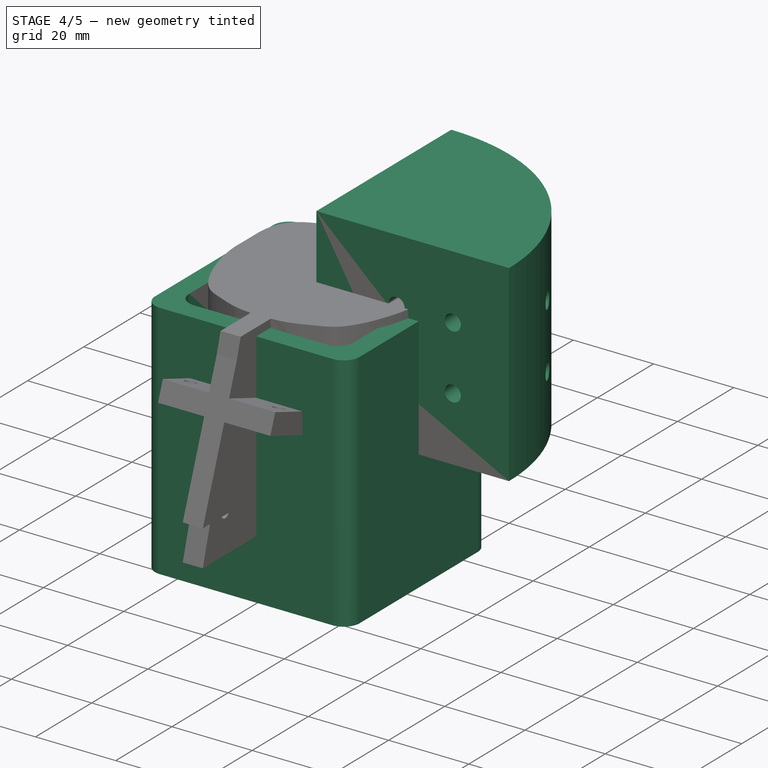
[diagram: stage 4 of 5 — iso view after this stage's code; geometry added in this stage tinted green]
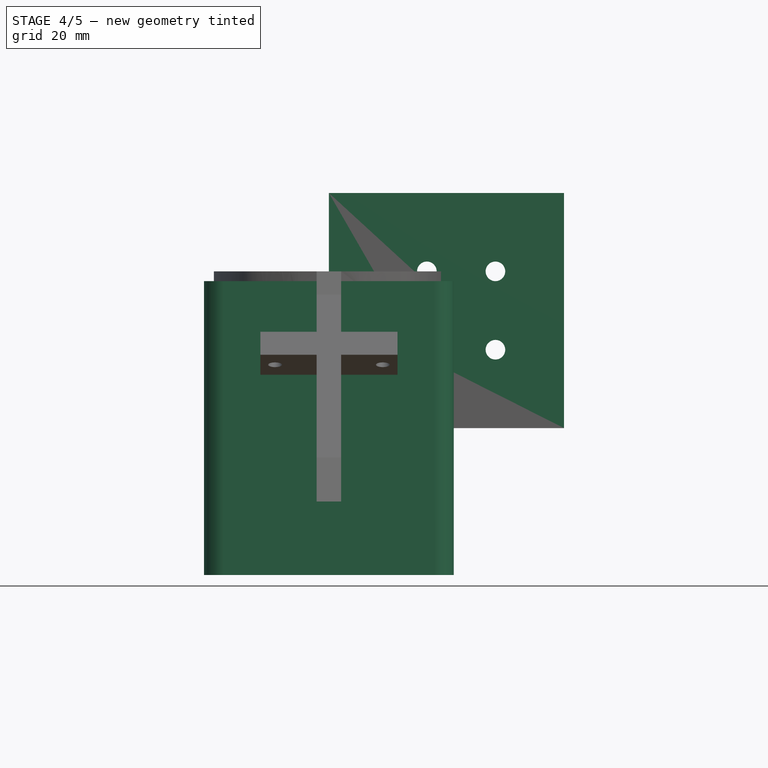
[diagram: stage 4 of 5 — front view after this stage's code; geometry added in this stage tinted green]
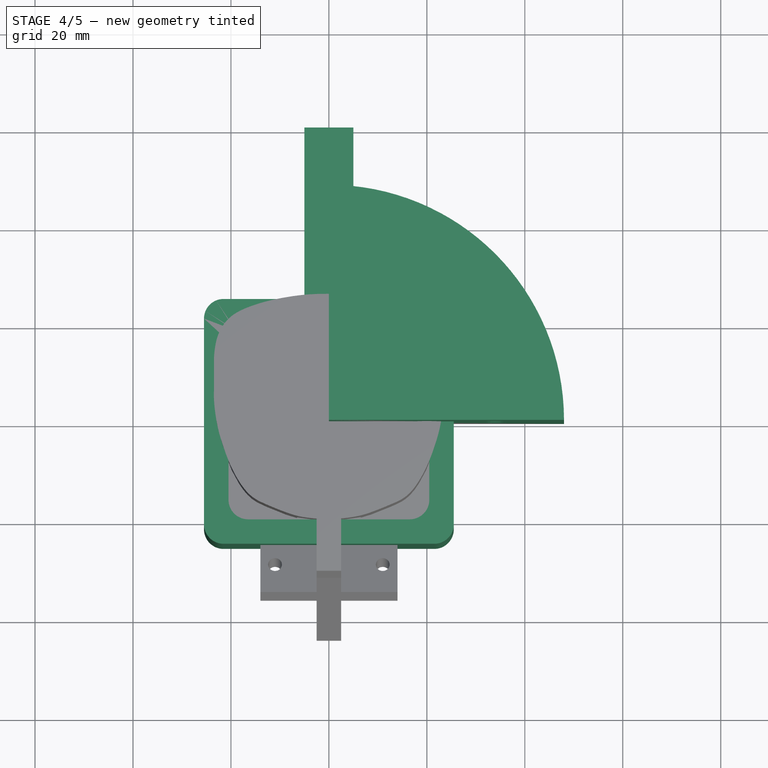
[diagram: stage 4 of 5 — top view after this stage's code; geometry added in this stage tinted green]
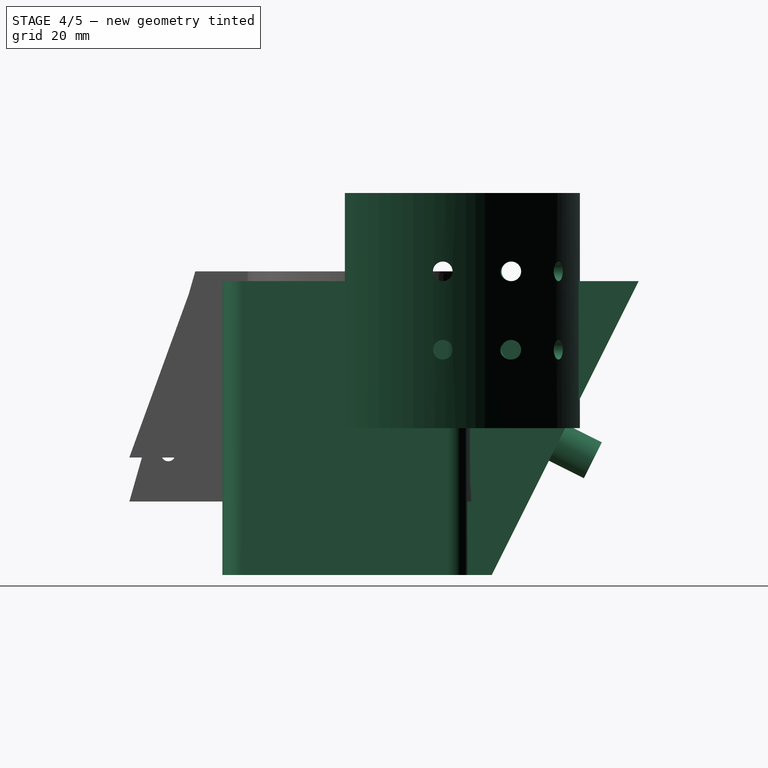
[diagram: stage 4 of 5 — right view after this stage's code; geometry added in this stage tinted green]
FEATURE [PartDesign::Body] Body001  label="garageDoorLowerprotection"
  Group = -> [Sketch002,Pad002,Sketch003,Pad003,Sketch004,Pad004,Sketch005,Sketch006,Pad005,Sketch007,Pocket001,Pocket,Sketch008,Pocket002,Sketch009,Pocket003]
  Origin = -> Origin001
  Tip = -> Pocket003
FEATURE [Sketcher::SketchObject] Sketch011  label="Sketch011Base"
  FullyConstrained = true
  MapMode = 5
  Support = -> [XY_Plane002]
  expr: Constraints[14] = Spreadsheet.tslChargerCorner
  expr: Constraints[15] = Spreadsheet.tslChargerCorner
  expr: Constraints[16] = Spreadsheet.tslChargerCorner
  expr: Constraints[17] = Spreadsheet.tslChargerCorner
  expr: Constraints[36] = Spreadsheet.tslChargerOuterWidth
  expr: Constraints[37] = Spreadsheet.tslChargerOuterHeight
  expr: Constraints[52] = Spreadsheet.tslChargerCorner
  expr: Constraints[53] = Spreadsheet.tslChargerCorner
  expr: Constraints[54] = Spreadsheet.tslChargerCorner
  expr: Constraints[59] = Spreadsheet.tslChargerCorner
  expr: Constraints[6] = Spreadsheet.tslChargerWidth
  expr: Constraints[7] = Spreadsheet.tslChargerHeight
  sketch-geometry (24):
    g0: LineSegment StartX=-20.5 StartY=20 StartZ=0 EndX=20.5 EndY=20 EndZ=0
    g1: LineSegment StartX=20.5 StartY=20 StartZ=0 EndX=20.5 EndY=-20 EndZ=0
    g2: LineSegment StartX=20.5 StartY=-20 StartZ=0 EndX=-20.5 EndY=-20 EndZ=0
    g3: LineSegment StartX=-20.5 StartY=-20 StartZ=0 EndX=-20.5 EndY=20 EndZ=0
    g4: LineSegment StartX=-16.5 StartY=20 StartZ=0 EndX=16.5 EndY=20 EndZ=0
    g5: LineSegment StartX=20.5 StartY=16 StartZ=0 EndX=20.5 EndY=-16 EndZ=0
    g6: LineSegment StartX=16.5 StartY=-20 StartZ=0 EndX=-16.5 EndY=-20 EndZ=0
    g7: LineSegment StartX=-20.5 StartY=-16 StartZ=0 EndX=-20.5 EndY=16 EndZ=0
    g8: ArcOfCircle CenterX=-16.5 CenterY=16 CenterZ=0 NormalX=0 NormalY=0 NormalZ=1 AngleXU=0 Radius=4 StartAngle=1.5708 EndAngle=3.14159
    g9: ArcOfCircle CenterX=16.5 CenterY=16 CenterZ=0 NormalX=0 NormalY=0 NormalZ=1 AngleXU=0 Radius=4 StartAngle=0 EndAngle=1.5708
    g10: ArcOfCircle CenterX=16.5 CenterY=-16 CenterZ=0 NormalX=0 NormalY=0 NormalZ=1 AngleXU=0 Radius=4 StartAngle=4.71239 EndAngle=6.28319
    g11: ArcOfCircle CenterX=-16.5 CenterY=-16 CenterZ=0 NormalX=0 NormalY=0 NormalZ=1 AngleXU=0 Radius=4 StartAngle=3.14159 EndAngle=4.71239
    g12: LineSegment StartX=-25.5 StartY=25 StartZ=0 EndX=25.5 EndY=25 EndZ=0
    g13: LineSegment StartX=25.5 StartY=25 StartZ=0 EndX=25.5 EndY=-25 EndZ=0
    g14: LineSegment StartX=25.5 StartY=-25 StartZ=0 EndX=-25.5 EndY=-25 EndZ=0
    g15: LineSegment StartX=-25.5 StartY=-25 StartZ=0 EndX=-25.5 EndY=25 EndZ=0
    g16: LineSegment StartX=-21.5 StartY=25 StartZ=0 EndX=21.5 EndY=25 EndZ=0
    g17: LineSegment StartX=25.5 StartY=21 StartZ=0 EndX=25.5 EndY=-21 EndZ=0
    g18: LineSegment StartX=21.5 StartY=-25 StartZ=0 EndX=-21.5 EndY=-25 EndZ=0
    g19: LineSegment StartX=-25.5 StartY=-21 StartZ=0 EndX=-25.5 EndY=21 EndZ=0
    g20: ArcOfCircle CenterX=-21.5 CenterY=21 CenterZ=0 NormalX=0 NormalY=0 NormalZ=1 AngleXU=0 Radius=4 StartAngle=1.5708 EndAngle=3.14159
    g21: ArcOfCircle CenterX=-21.5 CenterY=-21 CenterZ=0 NormalX=0 NormalY=0 NormalZ=1 AngleXU=0 Radius=4 StartAngle=3.14159 EndAngle=4.71239
    g22: ArcOfCircle CenterX=21.5 CenterY=21 CenterZ=0 NormalX=0 NormalY=0 NormalZ=1 AngleXU=0 Radius=4 StartAngle=0 EndAngle=1.5708
    g23: ArcOfCircle CenterX=21.5 CenterY=-21 CenterZ=0 NormalX=0 NormalY=0 NormalZ=1 AngleXU=0 Radius=4 StartAngle=4.71239 EndAngle=6.28319
  constraints (60):
    c: Coincident(g0,g1)
    c: Coincident(g1,g2)
    c: Coincident(g2,g3)
    c: Coincident(g3,g0)
    c: Horizontal(g2)
    c: Vertical(g3)
    c: DistanceX(g0,g0) = 41
    c: DistanceY(g1,g1) = 40
    c: Symmetric(g0,g0,g-2)
    c: Symmetric(g0,g1,g-1)
    c: Horizontal(g4)
    c: Horizontal(g6)
    c: Vertical(g5)
    c: Vertical(g7)
    c: Radius(g9) = 4
    c: Radius(g8) = 4
    c: Radius(g11) = 4
    c: Radius(g10) = 4
    c: Tangent(g11,g6) = 1.5708
    c: Tangent(g11,g7) = 1.5708
    c: Tangent(g8,g7) = 1.5708
    c: Tangent(g8,g4) = 1.5708
    c: Tangent(g4,g9) = 1.5708
    c: Tangent(g5,g9) = 1.5708
    c: Tangent(g10,g5) = 1.5708
    c: Tangent(g10,g6) = 1.5708
    c: PointOnObject(g7,g3)
    c: PointOnObject(g6,g2)
    c: PointOnObject(g5,g1)
    c: PointOnObject(g4,g0)
    c: Coincident(g12,g13)
    c: Coincident(g13,g14)
    c: Coincident(g14,g15)
    c: Coincident(g15,g12)
    c: Horizontal(g14)
    c: Vertical(g15)
    c: DistanceX(g12,g12) = 51
    c: DistanceY(g13,g13) = 50
    c: Symmetric(g12,g12,g-2)
    c: Symmetric(g12,g13,g-1)
    c: Horizontal(g16)
    c: Horizontal(g18)
    c: Vertical(g17)
    c: Vertical(g19)
    c: Tangent(g17,g22) = 1.5708
    c: Tangent(g16,g22) = 1.5708
    c: Tangent(g16,g20) = 1.5708
    c: Tangent(g19,g20) = 1.5708
    c: Tangent(g21,g19) = 1.5708
    c: PointOnObject(g17,g13)
    c: PointOnObject(g16,g12)
    c: PointOnObject(g19,g15)
    c: Radius(g20) = 4
    c: Radius(g21) = 4
    c: Radius(g22) = 4
    c: PointOnObject(g18,g14)
    c: Tangent(g18,g21) = 1.5708
    c: Tangent(g17,g23) = 1.5708
    c: Tangent(g18,g23) = 1.5708
    c: Radius(g23) = 4
FEATURE [PartDesign::Pad] Pad006
  Direction = (0,0,1)
  Length = 30
  Length2 = 10
  Profile = -> Sketch011
  ReferenceAxis = -> Sketch011 [N_Axis]
  Type = 0
  expr: Length = Spreadsheet.tslChargerPadHeight
FEATURE [Sketcher::SketchObject] Sketch012
  FullyConstrained = true
  MapMode = 5
  Placement = pos=(0,0,0) rot=(0.57735,0.57735,0.57735;2.0944rad)
  Support = -> [YZ_Plane002]
  expr: Constraints[5] = Spreadsheet.tslChargerHeight / 2
  sketch-geometry (6):
    g0: LineSegment StartX=20 StartY=4 StartZ=0 EndX=20 EndY=0 EndZ=0
    g1: LineSegment StartX=20 StartY=0 StartZ=0 EndX=15 EndY=0 EndZ=0
    g2: LineSegment StartX=15 StartY=0 StartZ=0 EndX=16 EndY=1.5 EndZ=0
    g3: LineSegment StartX=16 StartY=1.5 StartZ=0 EndX=18 EndY=1.5 EndZ=0
    g4: LineSegment StartX=18 StartY=1.5 StartZ=0 EndX=18 EndY=4 EndZ=0
    g5: LineSegment StartX=18 StartY=4 StartZ=0 EndX=20 EndY=4 EndZ=0
  constraints (18):
    c: PointOnObject(g1,g-1)
    c: Vertical(g0)
    c: Coincident(g1,g0)
    c: Horizontal(g1)
    c: DistanceX(g1,g1) = 5
    c: DistanceX(g-1,g0) = 20
    c: DistanceY(g0,g0) = 4
    c: Coincident(g2,g1)
    c: Coincident(g3,g2)
    c: Horizontal(g3)
    c: Coincident(g4,g3)
    c: Vertical(g4)
    c: Coincident(g5,g4)
    c: Coincident(g5,g0)
    c: Horizontal(g5)
    c: DistanceX(g5,g5) = 2
    c: DistanceX(g3,g3) = 2
    c: DistanceY(g4,g4) = 2.5
FEATURE [PartDesign::Pad] Pad007
  BaseFeature = -> Pad006
  Direction = (1,-2e-16,3e-16)
  Length = 7
  Length2 = 10
  Midplane = true
  Profile = -> Sketch012
  ReferenceAxis = -> Sketch012 [N_Axis]
  Type = 0
FEATURE [Sketcher::SketchObject] Sketch013
  FullyConstrained = true
  MapMode = 5
  Placement = pos=(0,0,0) rot=(0.57735,0.57735,0.57735;2.0944rad)
  Support = -> [YZ_Plane002]
  expr: Constraints[10] = Spreadsheet.tslChargerOuterHeight / 2
  expr: Constraints[19] = Spreadsheet.teslaHannderCoverExtLen
  expr: Constraints[7] = Spreadsheet.tslChargerPadHeight
  expr: Constraints[8] = Spreadsheet.tslExtConnectorTop
  expr: Constraints[9] = Spreadsheet.tslExtConnectorTop + Spreadsheet.tslExtConnectDiff
  sketch-geometry (7):
    g0: LineSegment StartX=25 StartY=0 StartZ=0 EndX=45 EndY=0 EndZ=0
    g1: LineSegment StartX=45 StartY=0 StartZ=0 EndX=60 EndY=30 EndZ=0
    g2: LineSegment StartX=60 StartY=30 StartZ=0 EndX=25 EndY=30 EndZ=0
    g3: LineSegment StartX=25 StartY=30 StartZ=0 EndX=25 EndY=0 EndZ=0
    g4: LineSegment StartX=25 StartY=0 StartZ=0 EndX=25 EndY=-30 EndZ=0
    g5: LineSegment StartX=45 StartY=0 StartZ=0 EndX=30 EndY=-30 EndZ=0
    g6: LineSegment StartX=25 StartY=-30 StartZ=0 EndX=30 EndY=-30 EndZ=0
  constraints (20):
    c: PointOnObject(g0,g-1)
    c: Coincident(g1,g0)
    c: Coincident(g2,g1)
    c: Horizontal(g2)
    c: Coincident(g3,g2)
    c: Coincident(g3,g0)
    c: Vertical(g3)
    c: DistanceY(g3,g3) = 30
    c: DistanceX(g0,g0) = 20
    c: DistanceX(g2,g2) = 35
    c: DistanceX(g-1,g0) = 25
    c: Horizontal(g0)
    c: Coincident(g4,g3)
    c: Vertical(g4)
    c: Coincident(g5,g1)
    c: Parallel(g1,g5)
    c: Horizontal(g6)
    c: Coincident(g4,g6)
    c: Coincident(g5,g6)
    c: DistanceY(g4,g4) = 30
FEATURE [PartDesign::Pad] Pad008
  BaseFeature = -> Pad007
  Direction = (1,-2e-16,3e-16)
  Length = 10
  Length2 = 10
  Midplane = true
  Profile = -> Sketch013
  ReferenceAxis = -> Sketch013 [N_Axis]
  Type = 0
FEATURE [Sketcher::SketchObject] Sketch014
  FullyConstrained = false
  MapMode = 5
  Placement = pos=(8.4e-15,-6.6e-15,-30) rot=(1,0,0;3.14159rad)
  Support = -> [Pad008]
  expr: Constraints[1] = Spreadsheet.supportHoleR + 0.05
  sketch-geometry (1):
    g0: Circle CenterX=0 CenterY=31.2963 CenterZ=0 NormalX=0 NormalY=0 NormalZ=1 AngleXU=0 Radius=4.05
  constraints (2):
    c: PointOnObject(g0,g-2)
    c: Radius(g0) = 4.05
FEATURE [Sketcher::SketchObject] Sketch015
  FullyConstrained = true
  MapMode = 5
  Support = -> [XY_Plane003]
  expr: Constraints[0] = Spreadsheet.vertConnLen
  sketch-geometry (3):
    g0: ArcOfCircle CenterX=1.646e-13 CenterY=0 CenterZ=0 NormalX=0 NormalY=0 NormalZ=1 AngleXU=0 Radius=48 StartAngle=0 EndAngle=1.5708
    g1: LineSegment StartX=1.646e-13 StartY=0 StartZ=0 EndX=1.646e-13 EndY=48 EndZ=0
    g2: LineSegment StartX=1.646e-13 StartY=0 StartZ=0 EndX=48 EndY=0 EndZ=0
  constraints (8):
    c: Radius(g0) = 48
    c: Coincident(g0,g-1)
    c: Coincident(g1,g0)
    c: Vertical(g1)
    c: Coincident(g2,g0)
    c: Horizontal(g2)
    c: Coincident(g0,g1)
    c: Coincident(g0,g2)
FEATURE [PartDesign::Pad] Pad010
  Direction = (0,0,1)
  Length = 48
  Length2 = 10
  Profile = -> Sketch015
  ReferenceAxis = -> Sketch015 [N_Axis]
  Type = 0
  expr: Length = Spreadsheet.vertConnLen
FEATURE [Sketcher::SketchObject] Sketch016  label="Sketch016ScrewCenterHole"
  FullyConstrained = true
  MapMode = 5
  Placement = pos=(0,0,0) rot=(0.57735,0.57735,0.57735;2.0944rad)
  Support = -> [YZ_Plane003]
  expr: Constraints[10] = Spreadsheet.vertConnScrewDist
  expr: Constraints[11] = Spreadsheet.vertConnScrewDist + Spreadsheet.vertConnThickness
  expr: Constraints[19] = Spreadsheet.vertConnScrewCenterHoleR
  expr: Constraints[8] = Spreadsheet.vertConnScrewDist3
  expr: Constraints[9] = Spreadsheet.vertConnScrewDist3
  sketch-geometry (8):
    g0: LineSegment StartX=20 StartY=32 StartZ=0 EndX=34 EndY=32 EndZ=0
    g1: LineSegment StartX=34 StartY=32 StartZ=0 EndX=34 EndY=16 EndZ=0
    g2: LineSegment StartX=34 StartY=16 StartZ=0 EndX=20 EndY=16 EndZ=0
    g3: LineSegment StartX=20 StartY=16 StartZ=0 EndX=20 EndY=32 EndZ=0
    g4: Circle CenterX=20 CenterY=32 CenterZ=0 NormalX=0 NormalY=0 NormalZ=1 AngleXU=0 Radius=2
    g5: Circle CenterX=20 CenterY=16 CenterZ=0 NormalX=0 NormalY=0 NormalZ=1 AngleXU=0 Radius=2
    g6: Circle CenterX=34 CenterY=16 CenterZ=0 NormalX=0 NormalY=0 NormalZ=1 AngleXU=0 Radius=2
    g7: Circle CenterX=34 CenterY=32 CenterZ=0 NormalX=0 NormalY=0 NormalZ=1 AngleXU=0 Radius=2
  constraints (20):
    c: Coincident(g0,g1)
    c: Coincident(g1,g2)
    c: Coincident(g2,g3)
    c: Coincident(g3,g0)
    c: Horizontal(g0)
    c: Horizontal(g2)
    c: Vertical(g1)
    c: Vertical(g3)
    c: DistanceY(g1,g1) = 16
    c: DistanceY(g-1,g1) = 16
    c: DistanceX(g0,g0) = 14
    c: DistanceX(g-1,g2) = 20
    c: Coincident(g4,g0)
    c: Coincident(g5,g2)
    c: Coincident(g6,g1)
    c: Coincident(g7,g0)
    c: Equal(g7,g4)
    c: Equal(g4,g5)
    c: Equal(g6,g5)
    c: Radius(g7) = 2
FEATURE [PartDesign::Pocket] Pocket004
  BaseFeature = -> Pad010
  Direction = (-1,2e-16,-3e-16)
  Length = 5
  Length2 = 5
  Profile = -> Sketch016
  ReferenceAxis = -> Sketch016 [N_Axis]
  Reversed = true
  Type = 1
FEATURE [Sketcher::SketchObject] Sketch017  label="Sketch016ScrewCenterHole001"
  AttachmentOffset = pos=(0,0,5) rot=(0,0,1;0rad)
  FullyConstrained = true
  MapMode = 5
  Placement = pos=(5,-1.1e-15,1.1e-15) rot=(0.57735,0.57735,0.57735;2.0944rad)
  Support = -> [YZ_Plane003]
  expr: .AttachmentOffset.Base.z = Spreadsheet.vertConnScrewDepth
  expr: Constraints[10] = Spreadsheet.vertConnScrewDist
  expr: Constraints[11] = Spreadsheet.vertConnScrewDist
  expr: Constraints[19] = Spreadsheet.vertConnScrewCapHoleR
  expr: Constraints[8] = Spreadsheet.vertConnScrewDist
  expr: Constraints[9] = Spreadsheet.vertConnScrewDist
  sketch-geometry (8):
    g0: LineSegment StartX=14 StartY=28 StartZ=0 EndX=28 EndY=28 EndZ=0
    g1: LineSegment StartX=28 StartY=28 StartZ=0 EndX=28 EndY=14 EndZ=0
    g2: LineSegment StartX=28 StartY=14 StartZ=0 EndX=14 EndY=14 EndZ=0
    g3: LineSegment StartX=14 StartY=14 StartZ=0 EndX=14 EndY=28 EndZ=0
    g4: Circle CenterX=14 CenterY=28 CenterZ=0 NormalX=0 NormalY=0 NormalZ=1 AngleXU=0 Radius=5
    g5: Circle CenterX=14 CenterY=14 CenterZ=0 NormalX=0 NormalY=0 NormalZ=1 AngleXU=0 Radius=5
    g6: Circle CenterX=28 CenterY=14 CenterZ=0 NormalX=0 NormalY=0 NormalZ=1 AngleXU=0 Radius=5
    g7: Circle CenterX=28 CenterY=28 CenterZ=0 NormalX=0 NormalY=0 NormalZ=1 AngleXU=0 Radius=5
  constraints (20):
    c: Coincident(g0,g1)
    c: Coincident(g1,g2)
    c: Coincident(g2,g3)
    c: Coincident(g3,g0)
    c: Horizontal(g0)
    c: Horizontal(g2)
    c: Vertical(g1)
    c: Vertical(g3)
    c: DistanceY(g1,g1) = 14
    c: DistanceY(g-1,g1) = 14
    c: DistanceX(g0,g0) = 14
    c: DistanceX(g-1,g2) = 14
    c: Coincident(g4,g0)
    c: Coincident(g5,g2)
    c: Coincident(g6,g1)
    c: Coincident(g7,g0)
    c: Equal(g7,g4)
    c: Equal(g4,g5)
    c: Equal(g6,g5)
    c: Radius(g7) = 5
FEATURE [Sketcher::SketchObject] Sketch018  label="Sketch018ScrewCenterHole"
  FullyConstrained = true
  MapMode = 5
  Placement = pos=(0,0,0) rot=(1,0,0;1.5708rad)
  Support = -> [XZ_Plane003]
  expr: Constraints[10] = Spreadsheet.vertConnScrewDist3
  expr: Constraints[11] = Spreadsheet.vertConnScrewDist3
  expr: Constraints[19] = Spreadsheet.vertConnScrewCenterHoleR
  expr: Constraints[8] = Spreadsheet.vertConnScrewDist + Spreadsheet.vertConnThickness
  expr: Constraints[9] = Spreadsheet.vertConnScrewDist
  sketch-geometry (8):
    g0: LineSegment StartX=20 StartY=32 StartZ=0 EndX=34 EndY=32 EndZ=0
    g1: LineSegment StartX=34 StartY=32 StartZ=0 EndX=34 EndY=16 EndZ=0
    g2: LineSegment StartX=34 StartY=16 StartZ=0 EndX=20 EndY=16 EndZ=0
    g3: LineSegment StartX=20 StartY=16 StartZ=0 EndX=20 EndY=32 EndZ=0
    g4: Circle CenterX=20 CenterY=32 CenterZ=0 NormalX=0 NormalY=0 NormalZ=1 AngleXU=0 Radius=2
    g5: Circle CenterX=20 CenterY=16 CenterZ=0 NormalX=0 NormalY=0 NormalZ=1 AngleXU=0 Radius=2
    g6: Circle CenterX=34 CenterY=32 CenterZ=0 NormalX=0 NormalY=0 NormalZ=1 AngleXU=0 Radius=2
    g7: Circle CenterX=34 CenterY=16 CenterZ=0 NormalX=0 NormalY=0 NormalZ=1 AngleXU=0 Radius=2
  constraints (20):
    c: Coincident(g0,g1)
    c: Coincident(g1,g2)
    c: Coincident(g2,g3)
    c: Coincident(g3,g0)
    c: Horizontal(g0)
    c: Horizontal(g2)
    c: Vertical(g1)
    c: Vertical(g3)
    c: DistanceX(g-1,g2) = 20
    c: DistanceX(g2,g2) = 14
    c: DistanceY(g1,g1) = 16
    c: DistanceY(g-1,g2) = 16
    c: Coincident(g4,g0)
    c: Coincident(g5,g2)
    c: Coincident(g6,g0)
    c: Coincident(g7,g1)
    c: Equal(g4,g6)
    c: Equal(g4,g5)
    c: Equal(g5,g7)
    c: Radius(g6) = 2
FEATURE [Sketcher::SketchObject] Sketch019  label="Sketch018ScrewBigHole001"
  AttachmentOffset = pos=(0,0,-5) rot=(0,0,1;0rad)
  FullyConstrained = true
  MapMode = 5
  Placement = pos=(0,5,1.1e-15) rot=(1,0,0;1.5708rad)
  Support = -> [XZ_Plane003]
  expr: .AttachmentOffset.Base.z = -Spreadsheet.vertConnScrewDepth
  expr: Constraints[10] = Spreadsheet.vertConnScrewDist
  expr: Constraints[11] = Spreadsheet.vertConnScrewDist
  expr: Constraints[19] = Spreadsheet.vertConnScrewCapHoleR
  expr: Constraints[8] = Spreadsheet.vertConnScrewDist
  expr: Constraints[9] = Spreadsheet.vertConnScrewDist
  sketch-geometry (8):
    g0: LineSegment StartX=14 StartY=28 StartZ=0 EndX=28 EndY=28 EndZ=0
    g1: LineSegment StartX=28 StartY=28 StartZ=0 EndX=28 EndY=14 EndZ=0
    g2: LineSegment StartX=28 StartY=14 StartZ=0 EndX=14 EndY=14 EndZ=0
    g3: LineSegment StartX=14 StartY=14 StartZ=0 EndX=14 EndY=28 EndZ=0
    g4: Circle CenterX=14 CenterY=28 CenterZ=0 NormalX=0 NormalY=0 NormalZ=1 AngleXU=0 Radius=5
    g5: Circle CenterX=14 CenterY=14 CenterZ=0 NormalX=0 NormalY=0 NormalZ=1 AngleXU=0 Radius=5
    g6: Circle CenterX=28 CenterY=14 CenterZ=0 NormalX=0 NormalY=0 NormalZ=1 AngleXU=0 Radius=5
    g7: Circle CenterX=28 CenterY=28 CenterZ=0 NormalX=0 NormalY=0 NormalZ=1 AngleXU=0 Radius=5
  constraints (20):
    c: Coincident(g0,g1)
    c: Coincident(g1,g2)
    c: Coincident(g2,g3)
    c: Coincident(g3,g0)
    c: Horizontal(g0)
    c: Horizontal(g2)
    c: Vertical(g1)
    c: Vertical(g3)
    c: DistanceX(g-1,g2) = 14
    c: DistanceX(g2,g2) = 14
    c: DistanceY(g1,g1) = 14
    c: DistanceY(g-1,g2) = 14
    c: Coincident(g4,g0)
    c: Coincident(g5,g2)
    c: Coincident(g6,g1)
    c: Coincident(g7,g0)
    c: Equal(g4,g5)
    c: Equal(g5,g6)
    c: Equal(g6,g7)
    c: Radius(g7) = 5
FEATURE [PartDesign::Pocket] Pocket006
  BaseFeature = -> Pocket004
  Direction = (0,1,2e-16)
  Length = 5
  Length2 = 5
  Profile = -> Sketch018
  ReferenceAxis = -> Sketch018 [N_Axis]
  Type = 1
FEATURE [PartDesign::Body] Body003  label="Body003VertConn"
  Group = -> [Sketch015,Pad010,Sketch016,Pocket004,Sketch017,Sketch018,Sketch019,Pocket006,Sketch020,Pocket008]
  Origin = -> Origin003
  Tip = -> Pocket008
FEATURE [Sketcher::SketchObject] Sketch021  label="Sketch011Base001"
  FullyConstrained = true
  MapMode = 5
  Support = -> [XY_Plane002]
  expr: Constraints[14] = Spreadsheet.tslChargerCorner
  expr: Constraints[15] = Spreadsheet.tslChargerCorner
  expr: Constraints[16] = Spreadsheet.tslChargerCorner
  expr: Constraints[17] = Spreadsheet.tslChargerCorner
  expr: Constraints[36] = Spreadsheet.tslChargerOuterWidth
  expr: Constraints[37] = Spreadsheet.tslChargerOuterHeight
  expr: Constraints[52] = Spreadsheet.tslChargerCorner
  expr: Constraints[53] = Spreadsheet.tslChargerCorner
  expr: Constraints[54] = Spreadsheet.tslChargerCorner
  expr: Constraints[59] = Spreadsheet.tslChargerCorner
  expr: Constraints[6] = Spreadsheet.tslChargerWidth
  expr: Constraints[7] = Spreadsheet.tslChargerHeight
  sketch-geometry (24):
    g0: LineSegment StartX=-20.5 StartY=20 StartZ=0 EndX=20.5 EndY=20 EndZ=0
    g1: LineSegment StartX=20.5 StartY=20 StartZ=0 EndX=20.5 EndY=-20 EndZ=0
    g2: LineSegment StartX=20.5 StartY=-20 StartZ=0 EndX=-20.5 EndY=-20 EndZ=0
    g3: LineSegment StartX=-20.5 StartY=-20 StartZ=0 EndX=-20.5 EndY=20 EndZ=0
    g4: LineSegment StartX=-16.5 StartY=20 StartZ=0 EndX=16.5 EndY=20 EndZ=0
    g5: LineSegment StartX=20.5 StartY=16 StartZ=0 EndX=20.5 EndY=-16 EndZ=0
    g6: LineSegment StartX=16.5 StartY=-20 StartZ=0 EndX=-16.5 EndY=-20 EndZ=0
    g7: LineSegment StartX=-20.5 StartY=-16 StartZ=0 EndX=-20.5 EndY=16 EndZ=0
    g8: ArcOfCircle CenterX=-16.5 CenterY=16 CenterZ=0 NormalX=0 NormalY=0 NormalZ=1 AngleXU=0 Radius=4 StartAngle=1.5708 EndAngle=3.14159
    g9: ArcOfCircle CenterX=16.5 CenterY=16 CenterZ=0 NormalX=0 NormalY=0 NormalZ=1 AngleXU=0 Radius=4 StartAngle=0 EndAngle=1.5708
    g10: ArcOfCircle CenterX=16.5 CenterY=-16 CenterZ=0 NormalX=0 NormalY=0 NormalZ=1 AngleXU=0 Radius=4 StartAngle=4.71239 EndAngle=6.28319
    g11: ArcOfCircle CenterX=-16.5 CenterY=-16 CenterZ=0 NormalX=0 NormalY=0 NormalZ=1 AngleXU=0 Radius=4 StartAngle=3.14159 EndAngle=4.71239
    g12: LineSegment StartX=-25.5 StartY=25 StartZ=0 EndX=25.5 EndY=25 EndZ=0
    g13: LineSegment StartX=25.5 StartY=25 StartZ=0 EndX=25.5 EndY=-25 EndZ=0
    g14: LineSegment StartX=25.5 StartY=-25 StartZ=0 EndX=-25.5 EndY=-25 EndZ=0
    g15: LineSegment StartX=-25.5 StartY=-25 StartZ=0 EndX=-25.5 EndY=25 EndZ=0
    g16: LineSegment StartX=-21.5 StartY=25 StartZ=0 EndX=21.5 EndY=25 EndZ=0
    g17: LineSegment StartX=25.5 StartY=21 StartZ=0 EndX=25.5 EndY=-21 EndZ=0
    g18: LineSegment StartX=21.5 StartY=-25 StartZ=0 EndX=-21.5 EndY=-25 EndZ=0
    g19: LineSegment StartX=-25.5 StartY=-21 StartZ=0 EndX=-25.5 EndY=21 EndZ=0
    g20: ArcOfCircle CenterX=-21.5 CenterY=21 CenterZ=0 NormalX=0 NormalY=0 NormalZ=1 AngleXU=0 Radius=4 StartAngle=1.5708 EndAngle=3.14159
    g21: ArcOfCircle CenterX=-21.5 CenterY=-21 CenterZ=0 NormalX=0 NormalY=0 NormalZ=1 AngleXU=0 Radius=4 StartAngle=3.14159 EndAngle=4.71239
    g22: ArcOfCircle CenterX=21.5 CenterY=21 CenterZ=0 NormalX=0 NormalY=0 NormalZ=1 AngleXU=0 Radius=4 StartAngle=0 EndAngle=1.5708
    g23: ArcOfCircle CenterX=21.5 CenterY=-21 CenterZ=0 NormalX=0 NormalY=0 NormalZ=1 AngleXU=0 Radius=4 StartAngle=4.71239 EndAngle=6.28319
  constraints (60):
    c: Coincident(g0,g1)
    c: Coincident(g1,g2)
    c: Coincident(g2,g3)
    c: Coincident(g3,g0)
    c: Horizontal(g2)
    c: Vertical(g3)
    c: DistanceX(g0,g0) = 41
    c: DistanceY(g1,g1) = 40
    c: Symmetric(g0,g0,g-2)
    c: Symmetric(g0,g1,g-1)
    c: Horizontal(g4)
    c: Horizontal(g6)
    c: Vertical(g5)
    c: Vertical(g7)
    c: Radius(g9) = 4
    c: Radius(g8) = 4
    c: Radius(g11) = 4
    c: Radius(g10) = 4
    c: Tangent(g11,g6) = 1.5708
    c: Tangent(g11,g7) = 1.5708
    c: Tangent(g8,g7) = 1.5708
    c: Tangent(g8,g4) = 1.5708
    c: Tangent(g4,g9) = 1.5708
    c: Tangent(g5,g9) = 1.5708
    c: Tangent(g10,g5) = 1.5708
    c: Tangent(g10,g6) = 1.5708
    c: PointOnObject(g7,g3)
    c: PointOnObject(g6,g2)
    c: PointOnObject(g5,g1)
    c: PointOnObject(g4,g0)
    c: Coincident(g12,g13)
    c: Coincident(g13,g14)
    c: Coincident(g14,g15)
    c: Coincident(g15,g12)
    c: Horizontal(g14)
    c: Vertical(g15)
    c: DistanceX(g12,g12) = 51
    c: DistanceY(g13,g13) = 50
    c: Symmetric(g12,g12,g-2)
    c: Symmetric(g12,g13,g-1)
    c: Horizontal(g16)
    c: Horizontal(g18)
    c: Vertical(g17)
    c: Vertical(g19)
    c: Tangent(g17,g22) = 1.5708
    c: Tangent(g16,g22) = 1.5708
    c: Tangent(g16,g20) = 1.5708
    c: Tangent(g19,g20) = 1.5708
    c: Tangent(g21,g19) = 1.5708
    c: PointOnObject(g17,g13)
    c: PointOnObject(g16,g12)
    c: PointOnObject(g19,g15)
    c: Radius(g20) = 4
    c: Radius(g21) = 4
    c: Radius(g22) = 4
    c: PointOnObject(g18,g14)
    c: Tangent(g18,g21) = 1.5708
    c: Tangent(g17,g23) = 1.5708
    c: Tangent(g18,g23) = 1.5708
    c: Radius(g23) = 4
FEATURE [PartDesign::Pad] Pad011
  BaseFeature = -> Pad008
  Direction = (0,0,1)
  Length = 30
  Length2 = 10
  Profile = -> Sketch021
  ReferenceAxis = -> Sketch021 [N_Axis]
  Reversed = true
  Type = 0
  expr: Length = Spreadsheet.teslaHannderCoverExtLen
FEATURE [Sketcher::SketchObject] Sketch022  label="Sketch011Base002"
  AttachmentOffset = pos=(0,0,-30) rot=(0,0,1;0rad)
  FullyConstrained = true
  MapMode = 5
  Placement = pos=(0,0,-30) rot=(0,0,1;0rad)
  Support = -> [XY_Plane002]
  expr: .AttachmentOffset.Base.z = -Spreadsheet.teslaHannderCoverExtLen
  expr: Constraints[22] = Spreadsheet.tslChargerCorner
  expr: Constraints[23] = Spreadsheet.tslChargerCorner
  expr: Constraints[24] = Spreadsheet.tslChargerCorner
  expr: Constraints[29] = Spreadsheet.tslChargerCorner
  expr: Constraints[6] = Spreadsheet.tslChargerOuterWidth
  expr: Constraints[7] = Spreadsheet.tslChargerOuterHeight
  sketch-geometry (12):
    g0: LineSegment StartX=-25.5 StartY=25 StartZ=0 EndX=25.5 EndY=25 EndZ=0
    g1: LineSegment StartX=25.5 StartY=25 StartZ=0 EndX=25.5 EndY=-25 EndZ=0
    g2: LineSegment StartX=25.5 StartY=-25 StartZ=0 EndX=-25.5 EndY=-25 EndZ=0
    g3: LineSegment StartX=-25.5 StartY=-25 StartZ=0 EndX=-25.5 EndY=25 EndZ=0
    g4: LineSegment StartX=-21.5 StartY=25 StartZ=0 EndX=21.5 EndY=25 EndZ=0
    g5: LineSegment StartX=25.5 StartY=21 StartZ=0 EndX=25.5 EndY=-21 EndZ=0
    g6: LineSegment StartX=21.5 StartY=-25 StartZ=0 EndX=-21.5 EndY=-25 EndZ=0
    g7: LineSegment StartX=-25.5 StartY=-21 StartZ=0 EndX=-25.5 EndY=21 EndZ=0
    g8: ArcOfCircle CenterX=-21.5 CenterY=21 CenterZ=0 NormalX=0 NormalY=0 NormalZ=1 AngleXU=0 Radius=4 StartAngle=1.5708 EndAngle=3.14159
    g9: ArcOfCircle CenterX=-21.5 CenterY=-21 CenterZ=0 NormalX=0 NormalY=0 NormalZ=1 AngleXU=0 Radius=4 StartAngle=3.14159 EndAngle=4.71239
    g10: ArcOfCircle CenterX=21.5 CenterY=21 CenterZ=0 NormalX=0 NormalY=0 NormalZ=1 AngleXU=0 Radius=4 StartAngle=0 EndAngle=1.5708
    g11: ArcOfCircle CenterX=21.5 CenterY=-21 CenterZ=0 NormalX=0 NormalY=0 NormalZ=1 AngleXU=0 Radius=4 StartAngle=4.71239 EndAngle=6.28319
  constraints (30):
    c: Coincident(g0,g1)
    c: Coincident(g1,g2)
    c: Coincident(g2,g3)
    c: Coincident(g3,g0)
    c: Horizontal(g2)
    c: Vertical(g3)
    c: DistanceX(g0,g0) = 51
    c: DistanceY(g1,g1) = 50
    c: Symmetric(g0,g0,g-2)
    c: Symmetric(g0,g1,g-1)
    c: Horizontal(g4)
    c: Horizontal(g6)
    c: Vertical(g5)
    c: Vertical(g7)
    c: Tangent(g5,g10) = 1.5708
    c: Tangent(g4,g10) = 1.5708
    c: Tangent(g4,g8) = 1.5708
    c: Tangent(g7,g8) = 1.5708
    c: Tangent(g9,g7) = 1.5708
    c: PointOnObject(g5,g1)
    c: PointOnObject(g4,g0)
    c: PointOnObject(g7,g3)
    c: Radius(g8) = 4
    c: Radius(g9) = 4
    c: Radius(g10) = 4
    c: PointOnObject(g6,g2)
    c: Tangent(g6,g9) = 1.5708
    c: Tangent(g5,g11) = 1.5708
    c: Tangent(g6,g11) = 1.5708
    c: Radius(g11) = 4
FEATURE [PartDesign::Pad] Pad012
  BaseFeature = -> Pad011
  Direction = (0,0,1)
  Length = 2
  Length2 = 10
  Profile = -> Sketch022
  ReferenceAxis = -> Sketch022 [N_Axis]
  Type = 0
FEATURE [Sketcher::SketchObject] Sketch023
  FullyConstrained = false
  MapMode = 5
  Placement = pos=(1.29e-14,36,-18) rot=(0,0.850651,0.525731;3.14159rad)
  Support = -> [Pad012]
  expr: Constraints[1] = Spreadsheet.supportHoleR + 0.1
  sketch-geometry (1):
    g0: Circle CenterX=0 CenterY=16.7735 CenterZ=0 NormalX=0 NormalY=0 NormalZ=1 AngleXU=0 Radius=4.1
  constraints (2):
    c: PointOnObject(g0,g-2)
    c: Radius(g0) = 4.1
FEATURE [PartDesign::Pad] Pad013
  BaseFeature = -> Pad012
  Direction = (3e-16,0.894427,-0.447214)
  Length = 8
  Length2 = 10
  Profile = -> Sketch023
  ReferenceAxis = -> Sketch023 [N_Axis]
  Type = 0
  expr: Length = Spreadsheet.teslaHandlerToBoardConnectorLen
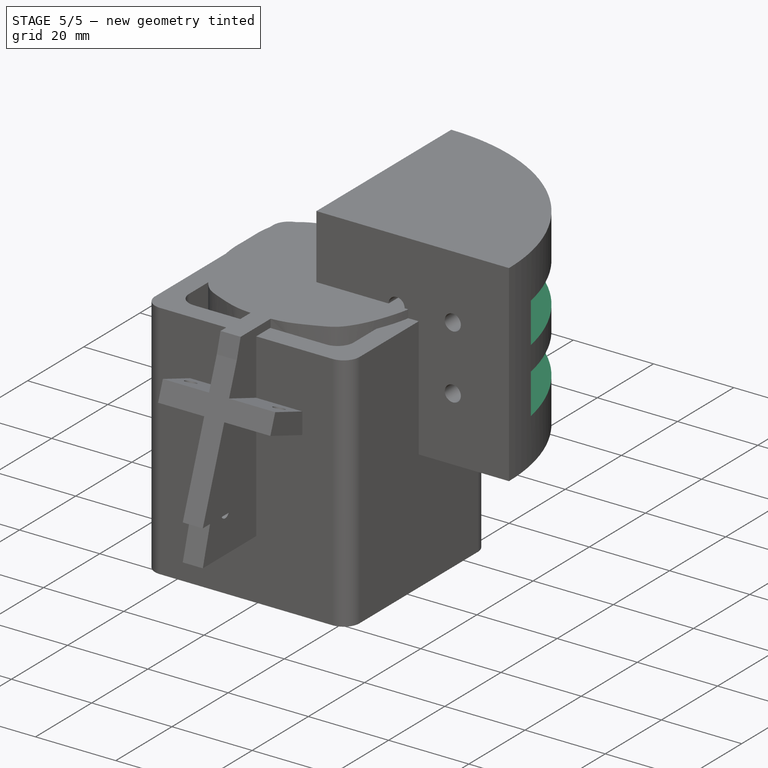
[diagram: stage 5 of 5 — iso view after this stage's code; geometry added in this stage tinted green]
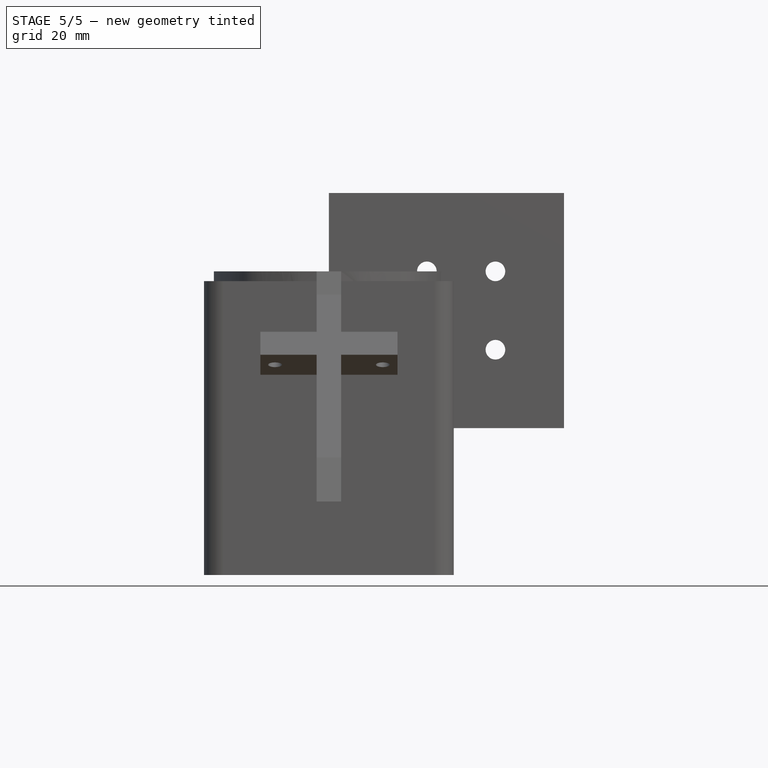
[diagram: stage 5 of 5 — front view after this stage's code; geometry added in this stage tinted green]
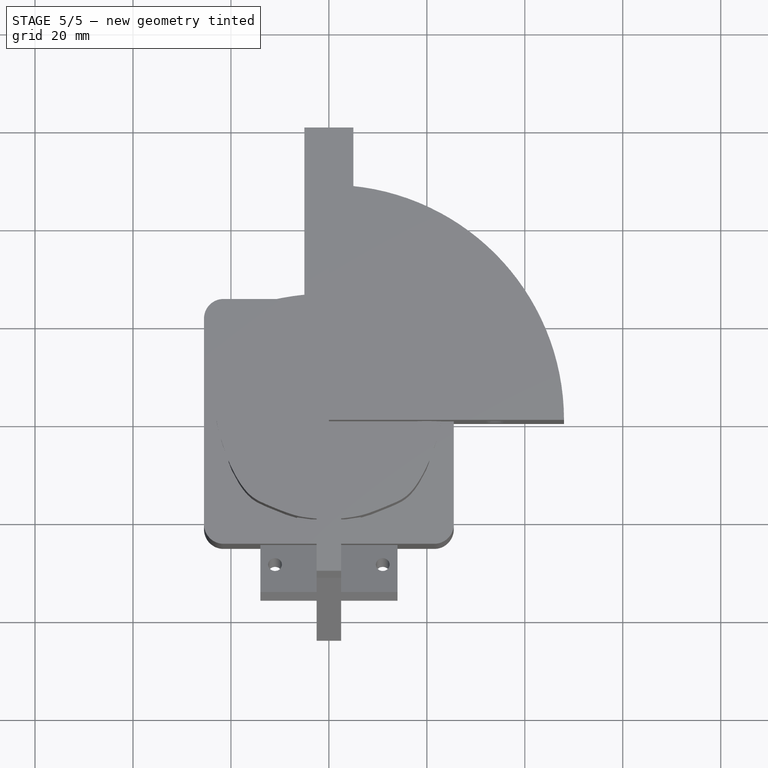
[diagram: stage 5 of 5 — top view after this stage's code; geometry added in this stage tinted green]
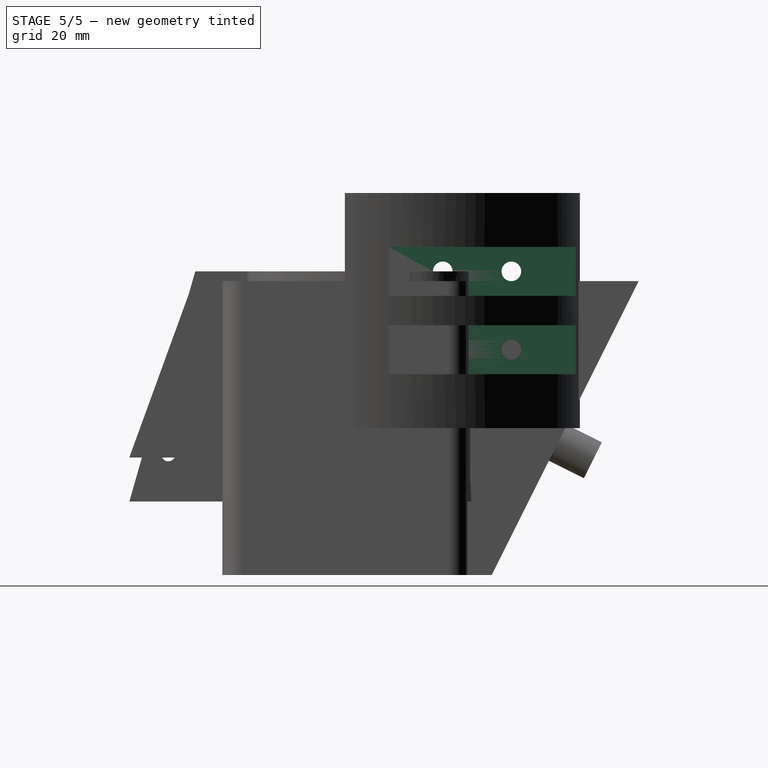
[diagram: stage 5 of 5 — right view after this stage's code; geometry added in this stage tinted green]
FEATURE [Spreadsheet::Sheet] Spreadsheet
  cells = A2='supportHoleR; B2(supportHoleR)=4; A3='supportHoleInnerH; B3(supportHoleInnerH)=8; A4='supportHoleOuterLen; B4(supportHoleOuterLen)=16; A6='totalSupportHoleLen; B6(totalSupportHoleLen)==supportHoleInnerH + supportHoleOuterLen; C6='calculated; A7='blockLen; B7(blockLen)=5; C7='dontuse; A8='blockWidth; B8(blockWidth)=6; A9='blockThickness; B9(blockThickness)=4; C10='blockStart; D10(blockStart)==totalSupportHoleLen - blockThickness; A17='garageDoorLowerPoleSize; B17(garageDoorLowerPoleSize)==8 - 0.05; A18='garageDoorLowerCoverThickness; B18(garageDoorLowerCoverThickness)=2; C19='garageDoorLowerCoverOuterSize; D19(garageDoorLowerCoverOuterSize)==garageDoorLowerPoleSize + garageDoorLowerCoverThickness; A20='garageDoorLowerCoverLength; B20(garageDoorLowerCoverLength)=15; A21='garageDoorLowerEndR; B21(garageDoorLowerEndR)==garageDoorLowerCoverOuterSize / 2; A22='garageDoorLowerEndLen; B22(garageDoorLowerEndLen)==garageDoorLowerCoverOuterSize + garageDoorSPSideLen * 2; A23='garageDoorSPSideLen; B23(garageDoorSPSideLen)=2.5; A24='garageDoorSPSidePcketLen; B24(garageDoorSPSidePcketLen)=8; A30='tslChargerWidth; B30(tslChargerWidth)==42 - 1; A31='tslChargerHeight; B31(tslChargerHeight)==42 - 2; A32='tslChargerCorner; B32(tslChargerCorner)=4; A33='tslChargerThickness; B33(tslChargerThickness)=5; A34='tslChargerOuterWidth; B34(tslChargerOuterWidth)==tslChargerWidth + tslChargerThickness * 2; A35='tslChargerOuterHeight; B35(tslChargerOuterHeight)==tslChargerHeight + tslChargerThickness * 2; A36='tslChargerPadHeight; B36(tslChargerPadHeight)=30; A37='tslExtConnectDiff; B37(tslExtConnectDiff)=15; A38='tslExtConnectorTop; B38(tslExtConnectorTop)=20; A57='vertConnLen; B57(vertConnLen)=48; A58='vertConnThickness; B58(vertConnThickness)=6; A59='vertConnScrewDist; B59(vertConnScrewDist)==(vertConnLen - vertConnThickness) / 3; A60='vertConnScrewCenterHoleR; B60(vertConnScrewCenterHoleR)==4 / 2; A61='vertConnScrewCapHoleR; B61(vertConnScrewCapHoleR)=5; A62='vertConnScrewDepth; B62(vertConnScrewDepth)=5; A63='vertConnScrewDist3; B63(vertConnScrewDist3)==vertConnLen / 3; A70='teslaHannderCoverExtLen; B70(teslaHannderCoverExtLen)=30; A71='teslaHannderCoverExtOuterThickness; B71(teslaHannderCoverExtOuterThickness)=2; A72='teslaHannderCoverExtOuterLen; B72(teslaHannderCoverExtOuterLen)=7; A74='teslaHandlerToBoardConnectorLen; B74(teslaHandlerToBoardConnectorLen)=8; A85='newWidth; B85(newWidth)=39; A86='newHeight; B86(newHeight)=35; A87='newTriggerHeight; B87(newTriggerHeight)=4; A88='newBetweenPlugDist; B88(newBetweenPlugDist)=22; A89='newPlugR; B89(newPlugR)=8; A90='newPlugeToTop; B90(newPlugeToTop)=11; A92='newTopCoverThickness; B92(newTopCoverThickness)=2; A93='newTightBottomLen; B93(newTightBottomLen)=15; A96='newConnBetweenScrewDist; B96(newConnBetweenScrewDist)=25; A97='newConnSideToScrew; B97(newConnSideToScrew)=5; A98='newConnBarWidth; B98(newConnBarWidth)=5; A100='newConnBaseThickness; B100(newConnBaseThickness)=4; A101='newConnSpacing; B101(newConnSpacing)=0.03; A103='newConnSideToScrewH; B103(newConnSideToScrewH)=8; A104='newConnTopY; B104(newConnTopY)==newConnBaseThickness + 11; A106='screwTightR; B106(screwTightR)=1.4; A107='woodScrewR; B107(woodScrewR)=2.5; A109='woodHoleR; B109(woodHoleR)=4.1; A112='supportRodLen; B112(supportRodLen)=10; A113='supportRodOuterR; B113(supportRodOuterR)==woodScrewR + 2; A117='bottomConnWidth; B117(bottomConnWidth)=24; A120='superTightLen; B120(superTightLen)==25 + superTightToTag + newTopCoverThickness; A121='superTightToTag; B121(superTightToTag)=5
FEATURE [Sketcher::SketchObject] Sketch002
  FullyConstrained = true
  MapMode = 5
  Support = -> [XY_Plane001]
  expr: Constraints[8] = Spreadsheet.garageDoorLowerCoverOuterSize
  sketch-geometry (4):
    g0: LineSegment StartX=-4.975 StartY=4.975 StartZ=0 EndX=4.975 EndY=4.975 EndZ=0
    g1: LineSegment StartX=4.975 StartY=4.975 StartZ=0 EndX=4.975 EndY=-4.975 EndZ=0
    g2: LineSegment StartX=4.975 StartY=-4.975 StartZ=0 EndX=-4.975 EndY=-4.975 EndZ=0
    g3: LineSegment StartX=-4.975 StartY=-4.975 StartZ=0 EndX=-4.975 EndY=4.975 EndZ=0
  constraints (10):
    c: Coincident(g0,g1)
    c: Coincident(g1,g2)
    c: Coincident(g2,g3)
    c: Coincident(g3,g0)
    c: Horizontal(g2)
    c: Vertical(g3)
    c: Equal(g0,g1)
    c: Symmetric(g0,g0,g-2)
    c: DistanceX(g0,g0) = 9.95
    c: Symmetric(g0,g1,g-1)
FEATURE [PartDesign::Pad] Pad002
  Direction = (0,0,1)
  Length = 15
  Length2 = 10
  Profile = -> Sketch002
  ReferenceAxis = -> Sketch002 [N_Axis]
  Type = 0
  expr: Length = Spreadsheet.garageDoorLowerCoverLength
FEATURE [Sketcher::SketchObject] Sketch003
  FullyConstrained = true
  MapMode = 5
  Placement = pos=(0,0,0) rot=(0.57735,0.57735,0.57735;2.0944rad)
  Support = -> [YZ_Plane001]
  expr: Constraints[1] = Spreadsheet.garageDoorLowerEndR
  sketch-geometry (2):
    g0: ArcOfCircle CenterX=0 CenterY=0 CenterZ=0 NormalX=0 NormalY=0 NormalZ=1 AngleXU=0 Radius=4.975 StartAngle=3.14159 EndAngle=6.28319
    g1: LineSegment StartX=-4.975 StartY=6e-16 StartZ=0 EndX=4.975 EndY=6e-16 EndZ=0
  constraints (6):
    c: Coincident(g0,g-1)
    c: Radius(g0) = 4.975
    c: Horizontal(g1)
    c: Coincident(g0,g1)
    c: Coincident(g0,g1)
    c: PointOnObject(g0,g-1)
FEATURE [PartDesign::Pad] Pad003
  BaseFeature = -> Pad002
  Direction = (1,-2e-16,3e-16)
  Length = 14.95
  Length2 = 10
  Midplane = true
  Profile = -> Sketch003
  ReferenceAxis = -> Sketch003 [N_Axis]
  Type = 0
  expr: Length = Spreadsheet.garageDoorLowerEndLen
FEATURE [Sketcher::SketchObject] Sketch004  label="Sketch004SideSupport"
  FullyConstrained = true
  MapMode = 5
  Placement = pos=(0,0,0) rot=(1,0,0;1.5708rad)
  Support = -> [XZ_Plane001]
  expr: Constraints[14] = Spreadsheet.garageDoorLowerCoverOuterSize / 2
  expr: Constraints[15] = Spreadsheet.garageDoorLowerEndLen / 2
  expr: Constraints[6] = Spreadsheet.garageDoorLowerEndLen / 2
  expr: Constraints[7] = Spreadsheet.garageDoorLowerCoverOuterSize / 2
  expr: Constraints[8] = Spreadsheet.garageDoorSPSidePcketLen
  sketch-geometry (6):
    g0: ArcOfCircle CenterX=19.025 CenterY=8 CenterZ=0 NormalX=0 NormalY=0 NormalZ=1 AngleXU=0 Radius=14.05 StartAngle=3.14159 EndAngle=3.74736
    g1: LineSegment StartX=7.475 StartY=0 StartZ=0 EndX=4.975 EndY=0 EndZ=0
    g2: LineSegment StartX=4.975 StartY=0 StartZ=0 EndX=4.975 EndY=8 EndZ=0
    g3: ArcOfCircle CenterX=-19.025 CenterY=8 CenterZ=0 NormalX=0 NormalY=0 NormalZ=1 AngleXU=0 Radius=14.05 StartAngle=5.67742 EndAngle=6.28319
    g4: LineSegment StartX=-7.475 StartY=2.7e-15 StartZ=0 EndX=-4.975 EndY=2.7e-15 EndZ=0
    g5: LineSegment StartX=-4.975 StartY=2.7e-15 StartZ=0 EndX=-4.975 EndY=8 EndZ=0
  constraints (18):
    c: PointOnObject(g1,g-1)
    c: Horizontal(g1)
    c: Coincident(g2,g1)
    c: Vertical(g2)
    c: Tangent(g0,g2) = 1.5708
    c: Coincident(g0,g1)
    c: DistanceX(g-1,g0) = 7.475
    c: DistanceX(g-1,g1) = 4.975
    c: DistanceY(g-1,g0) = 8
    c: Horizontal(g4)
    c: Coincident(g5,g4)
    c: Vertical(g5)
    c: Tangent(g3,g5) = -1.5708
    c: Coincident(g3,g4)
    c: DistanceX(g4,g-1) = 4.975
    c: DistanceX(g3,g-1) = 7.475
    c: Equal(g2,g5)
    c: PointOnObject(g3,g-1)
FEATURE [PartDesign::Pad] Pad004
  BaseFeature = -> Pad003
  Direction = (0,-1,-2e-16)
  Length = 9.95
  Length2 = 10
  Midplane = true
  Profile = -> Sketch004
  ReferenceAxis = -> Sketch004 [N_Axis]
  Type = 0
  expr: Length = Spreadsheet.garageDoorLowerCoverOuterSize
FEATURE [Sketcher::SketchObject] Sketch005  label="Sketch005PocketCenterHole"
  FullyConstrained = true
  MapMode = 5
  Support = -> [XY_Plane001]
  expr: Constraints[9] = Spreadsheet.garageDoorLowerPoleSize
  sketch-geometry (4):
    g0: LineSegment StartX=-3.975 StartY=3.975 StartZ=0 EndX=3.975 EndY=3.975 EndZ=0
    g1: LineSegment StartX=3.975 StartY=3.975 StartZ=0 EndX=3.975 EndY=-3.975 EndZ=0
    g2: LineSegment StartX=3.975 StartY=-3.975 StartZ=0 EndX=-3.975 EndY=-3.975 EndZ=0
    g3: LineSegment StartX=-3.975 StartY=-3.975 StartZ=0 EndX=-3.975 EndY=3.975 EndZ=0
  constraints (10):
    c: Coincident(g0,g1)
    c: Coincident(g1,g2)
    c: Coincident(g2,g3)
    c: Coincident(g3,g0)
    c: Horizontal(g2)
    c: Vertical(g3)
    c: Symmetric(g0,g1,g-1)
    c: Symmetric(g0,g0,g-2)
    c: Equal(g0,g1)
    c: DistanceX(g0,g0) = 7.95
FEATURE [Sketcher::SketchObject] Sketch006
  FullyConstrained = true
  MapMode = 5
  Placement = pos=(0,0,0) rot=(1,0,0;1.5708rad)
  Support = -> [XZ_Plane001]
  expr: Constraints[0] = Spreadsheet.garageDoorLowerEndR / 2
  expr: Constraints[1] = Spreadsheet.garageDoorLowerEndR / 2
  expr: Constraints[2] = Spreadsheet.garageDoorLowerEndLen / 2
  expr: Constraints[3] = Spreadsheet.garageDoorLowerEndR / 2
  expr: Constraints[4] = Spreadsheet.garageDoorLowerEndR / 2
  expr: Constraints[5] = Spreadsheet.garageDoorLowerEndLen / 2
  sketch-geometry (2):
    g0: Circle CenterX=7.475 CenterY=-2.4875 CenterZ=0 NormalX=0 NormalY=0 NormalZ=1 AngleXU=0 Radius=2.4875
    g1: Circle CenterX=-7.475 CenterY=-2.4875 CenterZ=0 NormalX=0 NormalY=0 NormalZ=1 AngleXU=0 Radius=2.4875
  constraints (6):
    c: Radius(g0) = 2.4875
    c: DistanceY(g0,g-1) = 2.4875
    c: DistanceX(g-1,g0) = 7.475
    c: Radius(g1) = 2.4875
    c: DistanceY(g1,g-1) = 2.4875
    c: DistanceX(g1,g-1) = 7.475
FEATURE [PartDesign::Pad] Pad005
  BaseFeature = -> Pad004
  Direction = (0,-1,-2e-16)
  Length = 9.95
  Length2 = 10
  Midplane = true
  Profile = -> Sketch006
  ReferenceAxis = -> Sketch006 [N_Axis]
  Type = 0
  expr: Length = Spreadsheet.garageDoorLowerEndR * 2
FEATURE [Sketcher::SketchObject] Sketch007
  FullyConstrained = true
  MapMode = 5
  Placement = pos=(0,0,0) rot=(0.57735,0.57735,0.57735;2.0944rad)
  Support = -> [YZ_Plane001]
  expr: Constraints[1] = Spreadsheet.garageDoorLowerEndR
  sketch-geometry (4):
    g0: ArcOfCircle CenterX=0 CenterY=0 CenterZ=0 NormalX=0 NormalY=0 NormalZ=1 AngleXU=0 Radius=4.975 StartAngle=3.14159 EndAngle=6.28319
    g1: LineSegment StartX=-4.975 StartY=6e-16 StartZ=0 EndX=-4.975 EndY=-11.5 EndZ=0
    g2: LineSegment StartX=4.975 StartY=-1.2e-15 StartZ=0 EndX=4.975 EndY=-11.5 EndZ=0
    g3: LineSegment StartX=-4.975 StartY=-11.5 StartZ=0 EndX=4.975 EndY=-11.5 EndZ=0
  constraints (12):
    c: Coincident(g0,g-1)
    c: Radius(g0) = 4.975
    c: Coincident(g1,g0)
    c: Vertical(g1)
    c: Coincident(g2,g0)
    c: Vertical(g2)
    c: Coincident(g3,g1)
    c: Coincident(g3,g2)
    c: Horizontal(g3)
    c: PointOnObject(g0,g-1)
    c: PointOnObject(g0,g-1)
    c: DistanceY(g2,g2) = 11.5
FEATURE [PartDesign::Pocket] Pocket001
  BaseFeature = -> Pad005
  Direction = (-1,2e-16,-3e-16)
  Length = 5
  Length2 = 5
  Midplane = true
  Profile = -> Sketch007
  ReferenceAxis = -> Sketch007 [N_Axis]
  Type = 1
FEATURE [PartDesign::Pocket] Pocket
  BaseFeature = -> Pocket001
  Direction = (0,0,-1)
  Length = 15
  Length2 = 5
  Profile = -> Sketch005
  ReferenceAxis = -> Sketch005 [N_Axis]
  Reversed = true
  Type = 0
  expr: Length = Spreadsheet.garageDoorLowerCoverLength
FEATURE [Sketcher::SketchObject] Sketch008  label="Sketch008TopSpace"
  FullyConstrained = true
  MapMode = 5
  Placement = pos=(0,0,0) rot=(0.57735,0.57735,0.57735;2.0944rad)
  Support = -> [YZ_Plane001]
  expr: Constraints[5] = Spreadsheet.garageDoorLowerPoleSize / 2
  sketch-geometry (2):
    g0: ArcOfCircle CenterX=0 CenterY=0 CenterZ=0 NormalX=0 NormalY=0 NormalZ=1 AngleXU=0 Radius=3.975 StartAngle=3.14159 EndAngle=6.28319
    g1: LineSegment StartX=-3.975 StartY=-1e-15 StartZ=0 EndX=3.975 EndY=-1e-15 EndZ=0
  constraints (6):
    c: Coincident(g0,g-1)
    c: Horizontal(g1)
    c: Coincident(g0,g1)
    c: Coincident(g0,g1)
    c: PointOnObject(g0,g-1)
    c: Radius(g0) = 3.975
FEATURE [PartDesign::Pocket] Pocket002
  BaseFeature = -> Pocket
  Direction = (-1,2e-16,-3e-16)
  Length = 7.95
  Length2 = 5
  Midplane = true
  Profile = -> Sketch008
  ReferenceAxis = -> Sketch008 [N_Axis]
  Type = 0
  expr: Length = Spreadsheet.garageDoorLowerPoleSize
FEATURE [Sketcher::SketchObject] Sketch009  label="Sketch004SideSupport001"
  FullyConstrained = false
  MapMode = 5
  Placement = pos=(0,0,0) rot=(1,0,0;1.5708rad)
  Support = -> [XZ_Plane001]
  expr: Constraints[0] = Spreadsheet.garageDoorSPSidePcketLen
  expr: Constraints[1] = Spreadsheet.garageDoorLowerCoverOuterSize / 2
  sketch-geometry (4):
    g0: ArcOfCircle CenterX=18.975 CenterY=8 CenterZ=0 NormalX=0 NormalY=0 NormalZ=1 AngleXU=0 Radius=14 StartAngle=3.14159 EndAngle=4.2701
    g1: ArcOfCircle CenterX=-18.975 CenterY=8 CenterZ=0 NormalX=0 NormalY=0 NormalZ=1 AngleXU=0 Radius=14 StartAngle=5.20967 EndAngle=6.28319
    g2: LineSegment StartX=4.975 StartY=8 StartZ=0 EndX=12.9829 EndY=-4.65284 EndZ=0
    g3: LineSegment StartX=-12.2964 StartY=-4.30433 StartZ=0 EndX=-4.975 EndY=8 EndZ=0
  constraints (10):
    c: DistanceY(g-1,g0) = 8
    c: DistanceX(g-1,g0) = 4.975
    c: Symmetric(g0,g1,g-2)
    c: DistanceY(g0,g0) = 0
    c: Symmetric(g0,g1,g-2)
    c: Radius(g0) = 14
    c: Coincident(g2,g0)
    c: Coincident(g2,g0)
    c: Coincident(g3,g1)
    c: Coincident(g3,g1)
FEATURE [PartDesign::Pocket] Pocket003
  BaseFeature = -> Pocket002
  Direction = (0,1,2e-16)
  Length = 5
  Length2 = 5
  Midplane = true
  Profile = -> Sketch009
  ReferenceAxis = -> Sketch009 [N_Axis]
  Type = 1
FEATURE [Sketcher::SketchObject] Sketch020
  AttachmentOffset = pos=(0,0,-9) rot=(0,0,1;0rad)
  FullyConstrained = true
  MapMode = 5
  Placement = pos=(0,9,2e-15) rot=(1,0,0;1.5708rad)
  Support = -> [XZ_Plane003]
  expr: .AttachmentOffset.Base.z = -Spreadsheet.vertConnScrewDist + Spreadsheet.vertConnScrewCapHoleR
  expr: Constraints[16] = Spreadsheet.vertConnScrewCapHoleR * 2
  expr: Constraints[17] = Spreadsheet.vertConnScrewCapHoleR * 2
  expr: Constraints[18] = Spreadsheet.vertConnScrewDist3 - Spreadsheet.vertConnScrewCapHoleR
  expr: Constraints[19] = Spreadsheet.vertConnScrewDist - Spreadsheet.vertConnScrewCapHoleR
  expr: Constraints[20] = Spreadsheet.vertConnLen
  expr: Constraints[22] = Spreadsheet.vertConnScrewDist3 * 2 - Spreadsheet.vertConnScrewCapHoleR
  expr: Constraints[23] = Spreadsheet.vertConnScrewDist - Spreadsheet.vertConnScrewCapHoleR
  sketch-geometry (8):
    g0: LineSegment StartX=9 StartY=21 StartZ=0 EndX=57 EndY=21 EndZ=0
    g1: LineSegment StartX=57 StartY=21 StartZ=0 EndX=57 EndY=11 EndZ=0
    g2: LineSegment StartX=57 StartY=11 StartZ=0 EndX=9 EndY=11 EndZ=0
    g3: LineSegment StartX=9 StartY=11 StartZ=0 EndX=9 EndY=21 EndZ=0
    g4: LineSegment StartX=9 StartY=37 StartZ=0 EndX=57 EndY=37 EndZ=0
    g5: LineSegment StartX=57 StartY=37 StartZ=0 EndX=57 EndY=27 EndZ=0
    g6: LineSegment StartX=57 StartY=27 StartZ=0 EndX=9 EndY=27 EndZ=0
    g7: LineSegment StartX=9 StartY=27 StartZ=0 EndX=9 EndY=37 EndZ=0
  constraints (24):
    c: Coincident(g0,g1)
    c: Coincident(g1,g2)
    c: Coincident(g2,g3)
    c: Coincident(g3,g0)
    c: Horizontal(g0)
    c: Horizontal(g2)
    c: Vertical(g1)
    c: Vertical(g3)
    c: Coincident(g4,g5)
    c: Coincident(g5,g6)
    c: Coincident(g6,g7)
    c: Coincident(g7,g4)
    c: Horizontal(g4)
    c: Horizontal(g6)
    c: Vertical(g5)
    c: Vertical(g7)
    c: DistanceY(g5,g5) = 10
    c: DistanceY(g1,g1) = 10
    c: DistanceY(g-1,g2) = 11
    c: DistanceX(g-1,g2) = 9
    c: DistanceX(g2,g2) = 48
    c: Equal(g0,g6)
    c: DistanceY(g-1,g6) = 27
    c: DistanceX(g-1,g6) = 9
FEATURE [PartDesign::Pocket] Pocket008
  BaseFeature = -> Pocket006
  Direction = (0,1,2e-16)
  Length = 5
  Length2 = 5
  Profile = -> Sketch020
  ReferenceAxis = -> Sketch020 [N_Axis]
  Type = 1
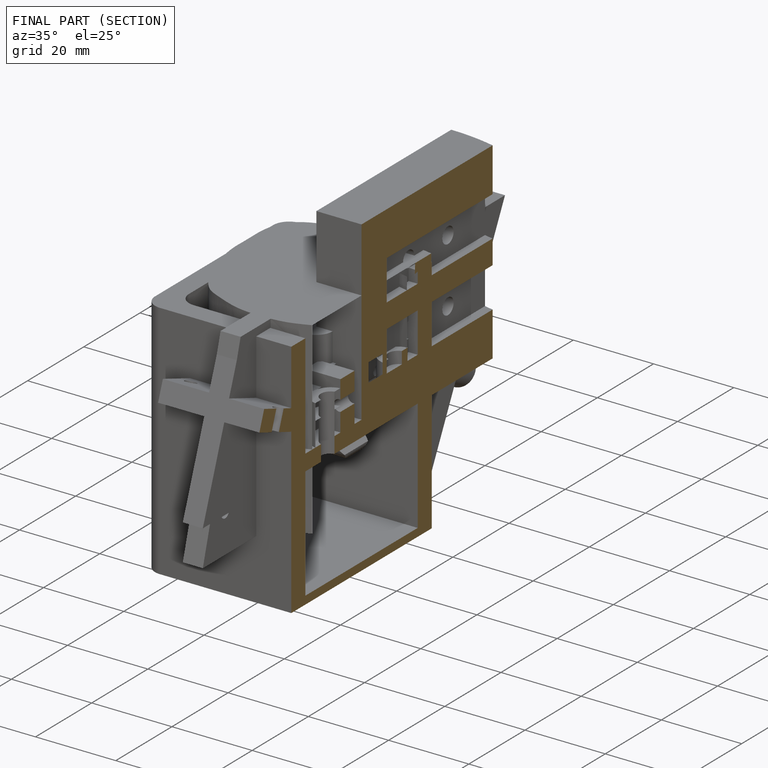
[diagram: finished part — half-section view (interior)]
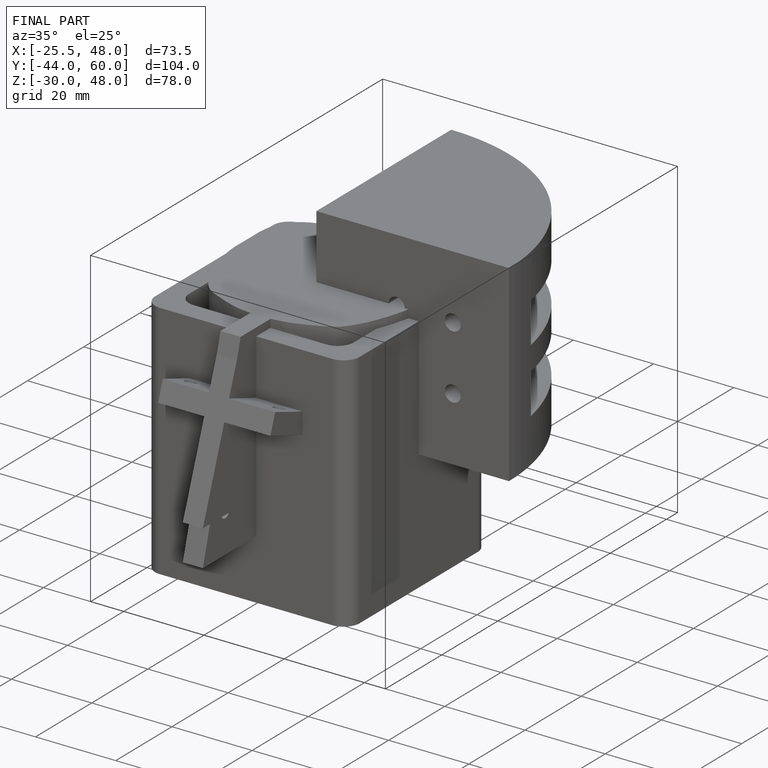
[diagram: finished part — iso view with bounding-box wireframe]
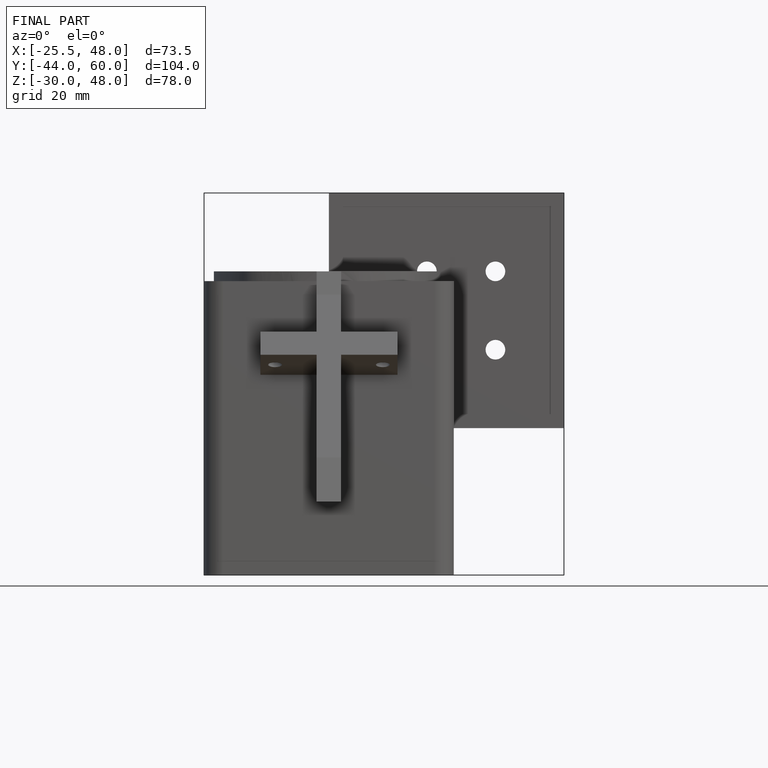
[diagram: finished part — front view with bounding-box wireframe]
